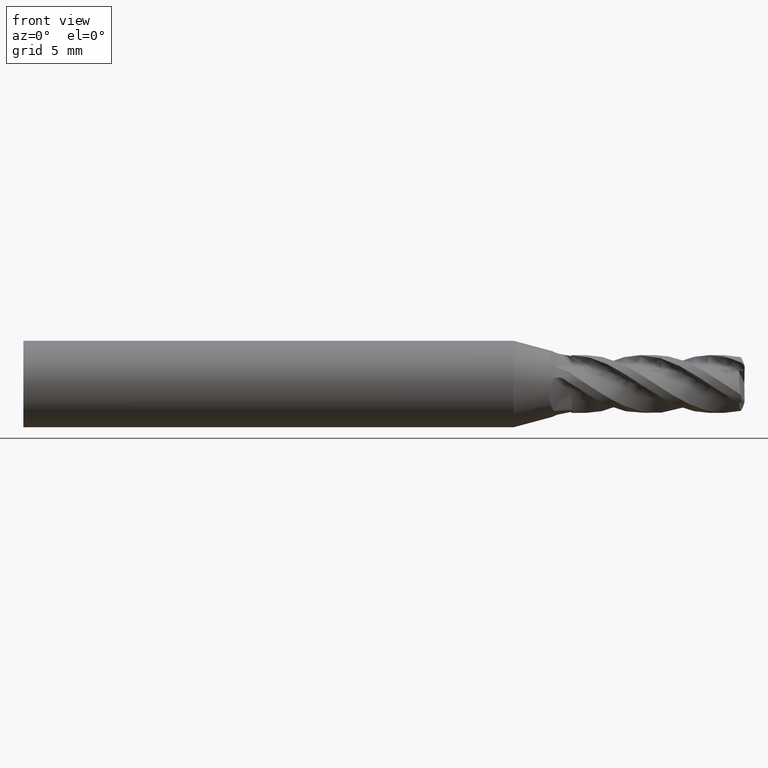
[diagram: clean part render]
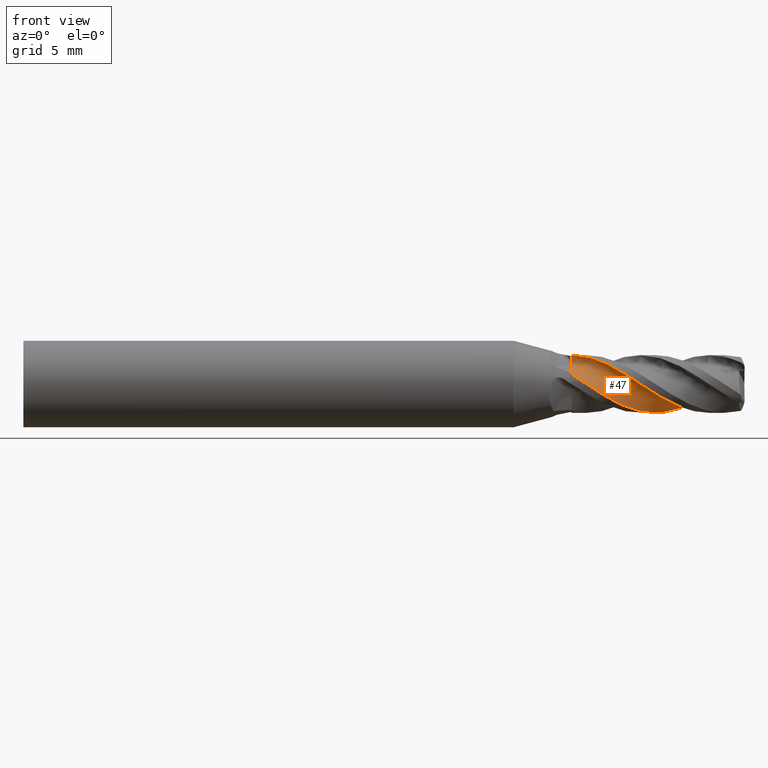
[diagram: same view with one face highlighted and labeled with its STEP entity id]
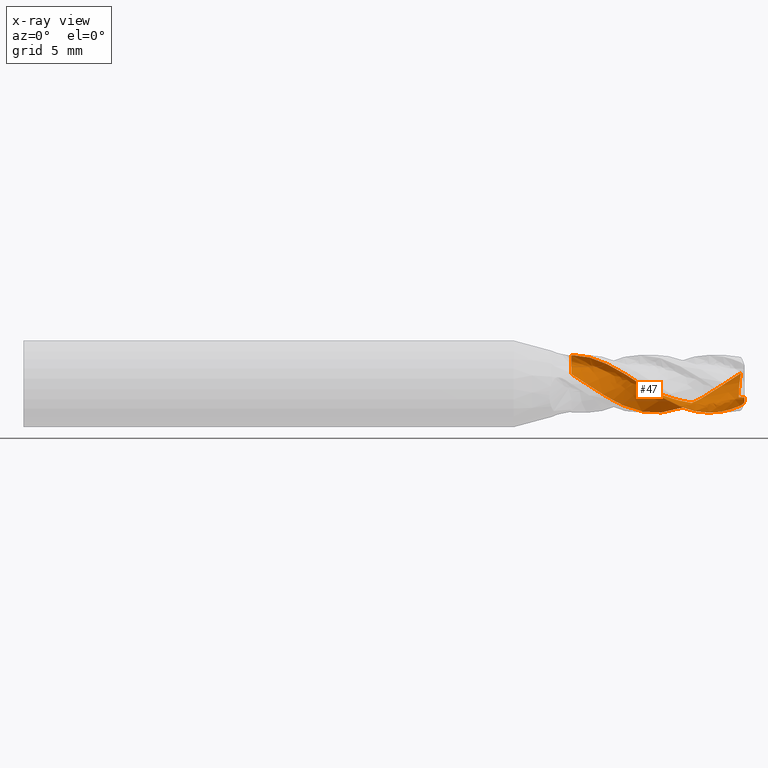
[diagram: x-ray of the same camera — body ghosted, the highlighted face saturated]
A machine part, front view. The second image highlights one B-rep face of the part: STEP entity #47.
The next image is the same camera in x-ray: the body ghosted, the highlighted face saturated — about 0% of this face is hidden behind the body in this view.
In plain terms, the highlighted face is a freeform B-spline surface patch.
Its self-contained STEP definition (entity closure, byte-faithful):
#47 = ADVANCED_FACE ( 'NONE', ( #7163 ), #5067, .F. ) ;
#100 = EDGE_CURVE ( 'NONE', #7056, #6993, #5093, .T. ) ;
#128 = EDGE_CURVE ( 'NONE', #6993, #7008, #5080, .T. ) ;
#131 = EDGE_CURVE ( 'NONE', #7073, #7064, #5079, .T. ) ;
#138 = EDGE_CURVE ( 'NONE', #7008, #7000, #7205, .T. ) ;
#151 = EDGE_CURVE ( 'NONE', #7013, #7011, #5073, .T. ) ;
#179 = EDGE_CURVE ( 'NONE', #7011, #7071, #7101, .T. ) ;
#212 = EDGE_CURVE ( 'NONE', #7064, #7078, #7084, .T. ) ;
#235 = EDGE_CURVE ( 'NONE', #7058, #7056, #7100, .T. ) ;
#283 = EDGE_CURVE ( 'NONE', #7071, #7073, #1801, .T. ) ;
#343 = EDGE_CURVE ( 'NONE', #7000, #7013, #1797, .T. ) ;
#346 = EDGE_CURVE ( 'NONE', #7078, #7058, #1796, .T. ) ;
#1796 = B_SPLINE_CURVE_WITH_KNOTS ( 'NONE', 3,
 ( #4892, #4918, #4919, #4920 ),
 .UNSPECIFIED., .F., .F.,
 ( 4, 4 ),
 ( 0.0005547796380594269400, 0.0006088796184067291400 ),
 .UNSPECIFIED. ) ;
#1797 = B_SPLINE_CURVE_WITH_KNOTS ( 'NONE', 3,
 ( #4884, #4893, #4894, #4895, #4896, #4897, #4898, #4899, #4900, #4901, #4902, #4903, #4904, #4905, #4906, #4907, #4908, #4909, #4910, #4911, #4912, #4913 ),
 .UNSPECIFIED., .F., .F.,
 ( 4, 2, 2, 2, 2, 2, 2, 2, 2, 2, 4 ),
 ( 0.0000000000000000000, 0.001422891868962472900, 0.002845783737924945700, 0.004268675606887415700, 0.005691567475849886200, 0.007114459344812360100, 0.007825905279293594500, 0.008537351213774829800, 0.009248797148256065000, 0.009960243082737300200, 0.01138313495169976500 ),
 .UNSPECIFIED. ) ;
#1801 = B_SPLINE_CURVE_WITH_KNOTS ( 'NONE', 3,
 ( #3085, #3090, #3091, #3092, #3093, #3094 ),
 .UNSPECIFIED., .F., .F.,
 ( 4, 2, 4 ),
 ( 0.0000000000000000000, 0.0001445635260095900000, 0.0002891270520191800000 ),
 .UNSPECIFIED. ) ;
#2446 = CARTESIAN_POINT ( 'NONE',  ( 2.000000000000000000, -1.068549896906284800E-014, 1.630000000000005900 ) ) ;
#2463 = CARTESIAN_POINT ( 'NONE',  ( 1.999999999999998200, -1.170938346284344800E-014, 1.738012294171767300 ) ) ;
#2464 = CARTESIAN_POINT ( 'NONE',  ( 1.999999999999998200, -1.257674520083185100E-014, 1.846024588343528200 ) ) ;
#2465 = CARTESIAN_POINT ( 'NONE',  ( 2.000000000000000000, -1.283413394755924800E-014, 1.953532272200879400 ) ) ;
#2466 = CARTESIAN_POINT ( 'NONE',  ( 13.99761933993744600, 1.085287725040986700, -0.9268549148809737100 ) ) ;
#2470 = CARTESIAN_POINT ( 'NONE',  ( 13.86641098407641300, 1.034475130077136900, -0.9125337641877616600 ) ) ;
#2471 = CARTESIAN_POINT ( 'NONE',  ( 13.72759808305324800, 0.9993112375547827900, -0.9132151357626661100 ) ) ;
#2472 = CARTESIAN_POINT ( 'NONE',  ( 13.59031554737842000, 0.9687013703488996900, -0.9174366512928946400 ) ) ;
#2482 = CARTESIAN_POINT ( 'NONE',  ( 1.999999999999998700, -1.395053969499972400E-014, 2.000000000000011500 ) ) ;
#2489 = DIRECTION ( 'NONE',  ( -2.344220913482135300E-015, -8.571649791457196100E-015, 1.000000000000000000 ) ) ;
#2570 = CARTESIAN_POINT ( 'NONE',  ( 11.53401989952380500, -7.115076756936120400E-017, -2.000000000000011100 ) ) ;
#2574 = CARTESIAN_POINT ( 'NONE',  ( 11.89317515702892400, 0.2366632150274844700, -2.000000000000008000 ) ) ;
#2575 = CARTESIAN_POINT ( 'NONE',  ( 12.25768823653953800, 0.4767123601655882100, -1.956815087930859500 ) ) ;
#2576 = CARTESIAN_POINT ( 'NONE',  ( 12.97808209811352500, 0.9216379035159034700, -1.790799692174228000 ) ) ;
#2577 = CARTESIAN_POINT ( 'NONE',  ( 13.33649518981908600, 1.128214567030021000, -1.668688226191311000 ) ) ;
#2578 = CARTESIAN_POINT ( 'NONE',  ( 13.69999999999999600, 1.309304436548252700, -1.511860407721319100 ) ) ;
#2685 = CARTESIAN_POINT ( 'NONE',  ( 13.69999999999999600, 1.309304436548252700, -1.511860407721319100 ) ) ;
#2689 = CARTESIAN_POINT ( 'NONE',  ( 13.77253979107603300, 1.345442118727209000, -1.480564378430632200 ) ) ;
#2690 = CARTESIAN_POINT ( 'NONE',  ( 13.84405686282516100, 1.362877363867533600, -1.429034360143930600 ) ) ;
#2691 = CARTESIAN_POINT ( 'NONE',  ( 13.95920112633545300, 1.341320719301881900, -1.303324790105798900 ) ) ;
#2692 = CARTESIAN_POINT ( 'NONE',  ( 14.00000000000057900, 1.297958158866142600, -1.228766820051035100 ) ) ;
#2693 = CARTESIAN_POINT ( 'NONE',  ( 14.00000000000000000, 1.234643642705029100, -1.168612457373316500 ) ) ;
#2784 = CARTESIAN_POINT ( 'NONE',  ( 13.59031554737842000, 0.9687013703488996900, -0.9174366512928946400 ) ) ;
#2788 = CARTESIAN_POINT ( 'NONE',  ( 13.60146189423734100, 0.9923058039770346100, -0.8409819254638082300 ) ) ;
#2789 = CARTESIAN_POINT ( 'NONE',  ( 13.60857889970267500, 1.031166808534933000, -0.7670463992704006400 ) ) ;
#2790 = CARTESIAN_POINT ( 'NONE',  ( 13.60805535701710100, 1.143161852898551000, -0.6512136925213627400 ) ) ;
#2791 = CARTESIAN_POINT ( 'NONE',  ( 13.60873654272306200, 1.196950388976524100, -0.5912703203561005000 ) ) ;
#2792 = CARTESIAN_POINT ( 'NONE',  ( 13.61367503054783700, 1.350456353858430700, -0.4063553090011958200 ) ) ;
#2793 = CARTESIAN_POINT ( 'NONE',  ( 13.62077790746032100, 1.442041967757212300, -0.2768143351325234000 ) ) ;
#2794 = CARTESIAN_POINT ( 'NONE',  ( 13.65417321835588800, 1.682695529574271800, 0.1316783040653307100 ) ) ;
#2795 = CARTESIAN_POINT ( 'NONE',  ( 13.69375207093213800, 1.796742164035508800, 0.4350769352493598100 ) ) ;
#2796 = CARTESIAN_POINT ( 'NONE',  ( 13.74785509637996300, 1.852356291947160600, 0.7439254967567625600 ) ) ;
#2892 = CARTESIAN_POINT ( 'NONE',  ( 13.70000000000000100, 1.865676517461873900, 0.7205908216119549800 ) ) ;
#2898 = CARTESIAN_POINT ( 'NONE',  ( 13.45502496568165200, 1.924596256421730000, 0.5680421489179466900 ) ) ;
#2899 = CARTESIAN_POINT ( 'NONE',  ( 13.21267466882169100, 1.964021373286281000, 0.4097312329461251800 ) ) ;
#2900 = CARTESIAN_POINT ( 'NONE',  ( 12.72490130669051900, 2.004082890044984700, 0.09440025320844378000 ) ) ;
#2901 = CARTESIAN_POINT ( 'NONE',  ( 12.48196874992363400, 2.005502124095438700, -0.06638029492440114500 ) ) ;
#2902 = CARTESIAN_POINT ( 'NONE',  ( 11.99481964501895500, 1.968434589706349100, -0.3895001660502396300 ) ) ;
#2903 = CARTESIAN_POINT ( 'NONE',  ( 11.74928629703289200, 1.929790315343644900, -0.5493473062755190900 ) ) ;
#2904 = CARTESIAN_POINT ( 'NONE',  ( 11.26359653829786500, 1.817190589837790000, -0.8507005844075117300 ) ) ;
#2905 = CARTESIAN_POINT ( 'NONE',  ( 11.02162660688570000, 1.743091247443135000, -0.9932686907193873900 ) ) ;
#2906 = CARTESIAN_POINT ( 'NONE',  ( 10.65529195906088200, 1.609944252130013800, -1.189250584297789600 ) ) ;
#2907 = CARTESIAN_POINT ( 'NONE',  ( 10.53224940280842700, 1.562339758517320900, -1.251193278366099500 ) ) ;
#2908 = CARTESIAN_POINT ( 'NONE',  ( 10.28732191523709700, 1.457497128154350100, -1.371893677474421300 ) ) ;
#2909 = CARTESIAN_POINT ( 'NONE',  ( 10.16466010977723400, 1.400227232700024500, -1.430394104031446100 ) ) ;
#2910 = CARTESIAN_POINT ( 'NONE',  ( 9.798559893217873900, 1.218385815956061400, -1.594424782687380100 ) ) ;
#2911 = CARTESIAN_POINT ( 'NONE',  ( 9.556238141410627700, 1.085808099242136600, -1.686942472832678100 ) ) ;
#2912 = CARTESIAN_POINT ( 'NONE',  ( 9.068167588345344800, 0.8086698608222118200, -1.835975814444308600 ) ) ;
#2913 = CARTESIAN_POINT ( 'NONE',  ( 8.828025681072935200, 0.6563172415114202400, -1.896183931675336800 ) ) ;
#2914 = CARTESIAN_POINT ( 'NONE',  ( 8.341665688979693600, 0.3424493892628560600, -1.977117659635459600 ) ) ;
#2915 = CARTESIAN_POINT ( 'NONE',  ( 8.092093281173491800, 0.1847880614242639100, -1.997947834144804300 ) ) ;
#2916 = CARTESIAN_POINT ( 'NONE',  ( 7.605948194103676000, -0.1373207549054879000, -2.001770512791372500 ) ) ;
#2917 = CARTESIAN_POINT ( 'NONE',  ( 7.366331404161790000, -0.3006297646878440300, -1.983633443014098300 ) ) ;
#2918 = CARTESIAN_POINT ( 'NONE',  ( 7.001178318500478800, -0.5324068408015072400, -1.929465710704094200 ) ) ;
#2919 = CARTESIAN_POINT ( 'NONE',  ( 6.878269775575157400, -0.6071582916417452800, -1.907294382230974000 ) ) ;
#2920 = CARTESIAN_POINT ( 'NONE',  ( 6.634158247988000100, -0.7577091044599446600, -1.852644046927974800 ) ) ;
#2921 = CARTESIAN_POINT ( 'NONE',  ( 6.512192695262510400, -0.8326379381236545000, -1.820278056819966800 ) ) ;
#2922 = CARTESIAN_POINT ( 'NONE',  ( 6.267510671153178100, -0.9785804883864688300, -1.746161037216322800 ) ) ;
#2923 = CARTESIAN_POINT ( 'NONE',  ( 6.145900025839330800, -1.048901346014070100, -1.704771143228345000 ) ) ;
#2924 = CARTESIAN_POINT ( 'NONE',  ( 5.902270577367182200, -1.182103408457989800, -1.615261655635461300 ) ) ;
#2925 = CARTESIAN_POINT ( 'NONE',  ( 5.779572865907950600, -1.244220499642460400, -1.567857464740490400 ) ) ;
#2926 = CARTESIAN_POINT ( 'NONE',  ( 5.414219901236345200, -1.424194273648555300, -1.413052510276439700 ) ) ;
#2927 = CARTESIAN_POINT ( 'NONE',  ( 5.174626022778320500, -1.535261987003851700, -1.291928025602073800 ) ) ;
#2928 = CARTESIAN_POINT ( 'NONE',  ( 4.688834503406266000, -1.722744389152206500, -1.028717240897455400 ) ) ;
#2929 = CARTESIAN_POINT ( 'NONE',  ( 4.438955218846627000, -1.798637655755985300, -0.8893242833924682700 ) ) ;
#2930 = CARTESIAN_POINT ( 'NONE',  ( 3.951946742438367200, -1.917870619180574800, -0.5897180562089242600 ) ) ;
#2931 = CARTESIAN_POINT ( 'NONE',  ( 3.711785730579024700, -1.959302267379132300, -0.4313942334659303700 ) ) ;
#2932 = CARTESIAN_POINT ( 'NONE',  ( 3.346374000038900400, -1.991877834741975700, -0.1966323507712403900 ) ) ;
#2933 = CARTESIAN_POINT ( 'NONE',  ( 3.224101102231099700, -1.998125912879785000, -0.1182761507149359700 ) ) ;
#2934 = CARTESIAN_POINT ( 'NONE',  ( 2.981311981305452300, -2.001163750561278500, 0.04289586214464995200 ) ) ;
#2935 = CARTESIAN_POINT ( 'NONE',  ( 2.860176314297989900, -1.997790350747761700, 0.1247729588190433100 ) ) ;
#2936 = CARTESIAN_POINT ( 'NONE',  ( 2.616402827677954100, -1.980852305723040900, 0.2880255539097856300 ) ) ;
#2937 = CARTESIAN_POINT ( 'NONE',  ( 2.494014881692280900, -1.967278904866678300, 0.3691913263546488000 ) ) ;
#2938 = CARTESIAN_POINT ( 'NONE',  ( 2.248038499082672700, -1.931216162990824000, 0.5262059072187820200 ) ) ;
#2939 = CARTESIAN_POINT ( 'NONE',  ( 2.123540741571626100, -1.909137239355099400, 0.6013490369767161600 ) ) ;
#2940 = CARTESIAN_POINT ( 'NONE',  ( 2.000000000000001800, -1.882011806484841000, 0.6767802894970527100 ) ) ;
#3085 = CARTESIAN_POINT ( 'NONE',  ( 14.00000000000000000, 1.234643642705029100, -1.168612457373316500 ) ) ;
#3090 = CARTESIAN_POINT ( 'NONE',  ( 13.99957814344277600, 1.199436005841542300, -1.135488499488992900 ) ) ;
#3091 = CARTESIAN_POINT ( 'NONE',  ( 13.99915416367727000, 1.162313259032579500, -1.104099195898215800 ) ) ;
#3092 = CARTESIAN_POINT ( 'NONE',  ( 13.99832810418652500, 1.110031870327480500, -1.021426131012911400 ) ) ;
#3093 = CARTESIAN_POINT ( 'NONE',  ( 13.99794876990034700, 1.093737747264296000, -0.9750876005549007400 ) ) ;
#3094 = CARTESIAN_POINT ( 'NONE',  ( 13.99761933993744600, 1.085287725040986700, -0.9268549148809737100 ) ) ;
#4884 = CARTESIAN_POINT ( 'NONE',  ( 1.999999999999998700, -1.350652283237326300E-014, 2.000000000000011500 ) ) ;
#4892 = CARTESIAN_POINT ( 'NONE',  ( 13.74785509637996300, 1.852356291947160600, 0.7439254967567625600 ) ) ;
#4893 = CARTESIAN_POINT ( 'NONE',  ( 2.400701694031820200, -0.2640738685338220900, 2.000000000000011100 ) ) ;
#4894 = CARTESIAN_POINT ( 'NONE',  ( 2.794806655079070900, -0.5237288667998333300, 1.947837485209903200 ) ) ;
#4895 = CARTESIAN_POINT ( 'NONE',  ( 3.588454341437808300, -1.006857121692584300, 1.747741837688049600 ) ) ;
#4896 = CARTESIAN_POINT ( 'NONE',  ( 3.989992513837208300, -1.230968335242071700, 1.597692412765154800 ) ) ;
#4897 = CARTESIAN_POINT ( 'NONE',  ( 4.780876449408847200, -1.599255675497132100, 1.228936683709209500 ) ) ;
#4898 = CARTESIAN_POINT ( 'NONE',  ( 5.174520375820096200, -1.746702182121427500, 1.009316885130621600 ) ) ;
#4899 = CARTESIAN_POINT ( 'NONE',  ( 5.975791814452882100, -1.948765188535908300, 0.5215393825859598900 ) ) ;
#4900 = CARTESIAN_POINT ( 'NONE',  ( 6.369195494339947100, -1.999798288277517800, 0.2621375522456029200 ) ) ;
#4901 = CARTESIAN_POINT ( 'NONE',  ( 7.160139980180695800, -2.000200520495348600, -0.2590505122657386600 ) ) ;
#4902 = CARTESIAN_POINT ( 'NONE',  ( 7.560827236412156300, -1.948216564089562800, -0.5231587351957481800 ) ) ;
#4903 = CARTESIAN_POINT ( 'NONE',  ( 8.159837127190392900, -1.796998605661646300, -0.8877537507390661500 ) ) ;
#4904 = CARTESIAN_POINT ( 'NONE',  ( 8.360515538147497600, -1.734210329872426700, -1.004872718270696700 ) ) ;
#4905 = CARTESIAN_POINT ( 'NONE',  ( 8.759107798632678400, -1.587882927466743400, -1.223062736257063400 ) ) ;
#4906 = CARTESIAN_POINT ( 'NONE',  ( 8.956983658510955200, -1.504510479518129400, -1.324162086834034700 ) ) ;
#4907 = CARTESIAN_POINT ( 'NONE',  ( 9.352221126502009000, -1.320105016332047400, -1.508071537110724500 ) ) ;
#4908 = CARTESIAN_POINT ( 'NONE',  ( 9.549561083518483400, -1.219049182654381000, -1.590906155557408000 ) ) ;
#4909 = CARTESIAN_POINT ( 'NONE',  ( 9.945936551181564100, -1.001760949108620800, -1.735954580731235300 ) ) ;
#4910 = CARTESIAN_POINT ( 'NONE',  ( 10.14597989696851400, -0.8849193484367219300, -1.798397499056718200 ) ) ;
#4911 = CARTESIAN_POINT ( 'NONE',  ( 10.74507481545583900, -0.5200310462953153800, -1.949058999182264900 ) ) ;
#4912 = CARTESIAN_POINT ( 'NONE',  ( 11.13811225695546400, -0.2608809799835447000, -2.000000000000012400 ) ) ;
#4913 = CARTESIAN_POINT ( 'NONE',  ( 11.53401989952380500, -7.115076756936120400E-017, -2.000000000000011100 ) ) ;
#4918 = CARTESIAN_POINT ( 'NONE',  ( 13.73130579874517600, 1.857565508729637900, 0.7381301231797613400 ) ) ;
#4919 = CARTESIAN_POINT ( 'NONE',  ( 13.71528603516918600, 1.862000023633001000, 0.7301096053619001700 ) ) ;
#4920 = CARTESIAN_POINT ( 'NONE',  ( 13.70000000000000100, 1.865676517461873900, 0.7205908216119549800 ) ) ;
#4955 = CARTESIAN_POINT ( 'NONE',  ( 2.000000000000000000, -1.068549896906284800E-014, 1.630000000000005900 ) ) ;
#4962 = CARTESIAN_POINT ( 'NONE',  ( 1.999999999999998700, -1.350652283237326300E-014, 2.000000000000011500 ) ) ;
#4970 = CARTESIAN_POINT ( 'NONE',  ( 2.000000000000000000, -1.283413394755924800E-014, 1.953532272200879400 ) ) ;
#4973 = CARTESIAN_POINT ( 'NONE',  ( 13.69999999999999600, 1.309304436548252700, -1.511860407721319100 ) ) ;
#4975 = CARTESIAN_POINT ( 'NONE',  ( 11.53401989952380500, -7.115076756936120400E-017, -2.000000000000011100 ) ) ;
#5012 = CARTESIAN_POINT ( 'NONE',  ( 2.000000000000001800, -1.882011806484841000, 0.6767802894970527100 ) ) ;
#5014 = CARTESIAN_POINT ( 'NONE',  ( 13.70000000000000100, 1.865676517461873900, 0.7205908216119549800 ) ) ;
#5020 = CARTESIAN_POINT ( 'NONE',  ( 13.59031554737842000, 0.9687013703488996900, -0.9174366512928946400 ) ) ;
#5027 = CARTESIAN_POINT ( 'NONE',  ( 14.00000000000000000, 1.234643642705029100, -1.168612457373316500 ) ) ;
#5029 = CARTESIAN_POINT ( 'NONE',  ( 13.99761933993744600, 1.085287725040986700, -0.9268549148809737100 ) ) ;
#5032 = CARTESIAN_POINT ( 'NONE',  ( 13.74785509637996300, 1.852356291947160600, 0.7439254967567625600 ) ) ;
#5067 = B_SPLINE_SURFACE_WITH_KNOTS ( 'NONE', 3, 3, ( 
 ( #7685, #7675, #7645, #7688, #7690, #7691, #7693, #7694, #7695, #7697, #7698, #7699, #7700, #7702, #7704, #7706, #7708, #7709, #7711, #7712, #7714, #7716, #7717, #7718, #7719, #7721, #7722, #7723, #7724, #7725, #7726, #7727, #7728, #7729, #7730, #7731, #7732, #7733, #7734, #7735 ),
 ( #7736, #7737, #7738, #7739, #7740, #7741, #7742, #7743, #7744, #7745, #7746, #7748, #7749, #7750, #7751, #7752, #7754, #7755, #7756, #7757, #7759, #7760, #7762, #7764, #7766, #7767, #7769, #7771, #7773, #7775, #7777, #7778, #7780, #7781, #7783, #7785, #7786, #7787, #7789, #7790 ),
 ( #7792, #7793, #7794, #7795, #7796, #7797, #7798, #7799, #7801, #7802, #7803, #7804, #7805, #7806, #7807, #7808, #7809, #7810, #7812, #7813, #7815, #7816, #7818, #7820, #7822, #7823, #7825, #7826, #7828, #7830, #7832, #7833, #7835, #7836, #7838, #7839, #7841, #7842, #7843, #7844 ),
 ( #7845, #7846, #7848, #7849, #7851, #7852, #7854, #7855, #7856, #7858, #7860, #7861, #7862, #7863, #7864, #7865, #7866, #7867, #7868, #7869, #7871, #7873, #7875, #7876, #7878, #7879, #7880, #7881, #7883, #7884, #7885, #7887, #7889, #7890, #7892, #7893, #7895, #7897, #7898, #7900 ),
 ( #7902, #7903, #7905, #7906, #7908, #7909, #7910, #7911, #7912, #7913, #7914, #7915, #7916, #7917, #7918, #7920, #7921, #7922, #7923, #7924, #7925, #7926, #7927, #7928, #7929, #7930, #7931, #7932, #7933, #7934, #7935, #7936, #7937, #7938, #7939, #7940, #7941, #7942, #7943, #7945 ),
 ( #7947, #7949, #7950, #7951, #7952, #7953, #7954, #7955, #7956, #7957, #7958, #7959, #7960, #7962, #7963, #7964, #7966, #7968, #7969, #7971, #7973, #7974, #7976, #7978, #7980, #7981, #7982, #7983, #7985, #7986, #7988, #7990, #7992, #7993, #7995, #7997, #7998, #7999, #8001, #8003 ),
 ( #8004, #8006, #8008, #8010, #8011, #8012, #8013, #8014, #8016, #8018, #8019, #8020, #8021, #8023, #8024, #8026, #8028, #8029, #8031, #8033, #8035, #8037, #8039, #8040, #8042, #8043, #8045, #8046, #8048, #8049, #8051, #8053, #8054, #8055, #8056, #8057, #8058, #8059, #8060, #8061 ),
 ( #8062, #8063, #8065, #8066, #8068, #8069, #8071, #8072, #8074, #8075, #8077, #8079, #8081, #8082, #8084, #8086, #8088, #8089, #8090, #8091, #8092, #8093, #8094, #8095, #8096, #8097, #8099, #8100, #8101, #8102, #8104, #8105, #8106, #8107, #8108, #8110, #8111, #8112, #8114, #8115 ),
 ( #8116, #8117, #8118, #8119, #8120, #8121, #8123, #8124, #8126, #8127, #8128, #8129, #8130, #8131, #8133, #8134, #8136, #8137, #8138, #8139, #8141, #8142, #8143, #8145, #8146, #8148, #8150, #8151, #8153, #8155, #8157, #8158, #8159, #8160, #8161, #8162, #8164, #8165, #8167, #8168 ),
 ( #8170, #8171, #8172, #8174, #8175, #8176, #8178, #8180, #8181, #8182, #8183, #8184, #8186, #8187, #8189, #8191, #8193, #8194, #8195, #8197, #8199, #8201, #8202, #8203, #8205, #8206, #8207, #8209, #8210, #8211, #8212, #8213, #8214, #8216, #8218, #8219, #8220, #8222, #8224, #8226 ),
 ( #8228, #8229, #8231, #8233, #8235, #8236, #8237, #8238, #8239, #8241, #8243, #8245, #8247, #8248, #8249, #8250, #8252, #8254, #8256, #8257, #8259, #8260, #8261, #8263, #8265, #8266, #8268, #8270, #8271, #8273, #8275, #8276, #8277, #8278, #8279, #8281, #8283, #8284, #8285, #8286 ),
 ( #8288, #8289, #8291, #8293, #8294, #8295, #8297, #8298, #8300, #8301, #8302, #8303, #8305, #8306, #8307, #8308, #8309, #8310, #8311, #8313, #8315, #8316, #8317, #8319, #8321, #8322, #8323, #8325, #8326, #8327, #8329, #8331, #8333, #8335, #8336, #8338, #8339, #8341, #8342, #8344 ) ),
 .UNSPECIFIED., .F., .F., .F.,
 ( 4, 2, 2, 2, 2, 4 ),
 ( 4, 2, 2, 2, 2, 2, 2, 2, 2, 2, 2, 2, 2, 2, 2, 2, 2, 2, 2, 4 ),
 ( 0.0000000000000000000, 0.4999999999999980000, 0.6259407578674396300, 0.7544896674088813500, 0.8363264449392546800, 1.000000000000000000 ),
 ( 0.0000000000000000000, 0.04997467127568103200, 0.09998637292206515000, 0.1500083548865104300, 0.2000041774432554400, 0.2500000000000004400, 0.3000078072025935100, 0.3500078405516286500, 0.4000078739006637800, 0.4750078529281620600, 0.5125078424419111700, 0.5500078319556602800, 0.6000078559143881000, 0.6500078798731159200, 0.7000039399365582900, 0.7500000000000005600, 0.8000077393251035000, 0.9000136270779349700, 0.9500253287243191100, 1.000000000000000000 ),
 .UNSPECIFIED. ) ;
#5073 = B_SPLINE_CURVE_WITH_KNOTS ( 'NONE', 3,
 ( #2570, #2574, #2575, #2576, #2577, #2578 ),
 .UNSPECIFIED., .F., .F.,
 ( 4, 2, 4 ),
 ( 0.01138313495169976500, 0.01267393876716508400, 0.01396474258263040400 ),
 .UNSPECIFIED. ) ;
#5079 = B_SPLINE_CURVE_WITH_KNOTS ( 'NONE', 3,
 ( #2466, #2470, #2471, #2472 ),
 .UNSPECIFIED., .F., .F.,
 ( 4, 4 ),
 ( 0.0007026178730873633600, 0.001111401762182521000 ),
 .UNSPECIFIED. ) ;
#5080 = B_SPLINE_CURVE_WITH_KNOTS ( 'NONE', 3,
 ( #2446, #2463, #2464, #2465 ),
 .UNSPECIFIED., .F., .F.,
 ( 4, 4 ),
 ( 0.0000000000000000000, 1.000000000000000000 ),
 .UNSPECIFIED. ) ;
#5093 = B_SPLINE_CURVE_WITH_KNOTS ( 'NONE', 3,
 ( #6678, #6690, #6691, #6692, #6693, #6694, #6695, #6696, #6697, #6698, #6699, #6700, #6701, #6702 ),
 .UNSPECIFIED., .F., .F.,
 ( 4, 2, 2, 2, 2, 2, 4 ),
 ( 0.0001722228637857543500, 0.001262236489837692200, 0.001534739896350676400, 0.001670991599607168700, 0.001807243302863660800, 0.002079746709376645500, 0.002352250115889629700 ),
 .UNSPECIFIED. ) ;
#6678 = CARTESIAN_POINT ( 'NONE',  ( 2.000000000000001800, -1.882011806484841000, 0.6767802894970527100 ) ) ;
#6690 = CARTESIAN_POINT ( 'NONE',  ( 1.999999999999999600, -1.578483106160425900, 0.8809794886728106200 ) ) ;
#6691 = CARTESIAN_POINT ( 'NONE',  ( 1.999999999999999100, -1.247917274806490800, 1.037671906028672800 ) ) ;
#6692 = CARTESIAN_POINT ( 'NONE',  ( 1.999999999999999100, -0.8049078617157100500, 1.162177131264001700 ) ) ;
#6693 = CARTESIAN_POINT ( 'NONE',  ( 1.999999999999999600, -0.7153885249762013100, 1.183335551830703600 ) ) ;
#6694 = CARTESIAN_POINT ( 'NONE',  ( 1.999999999999999100, -0.5797237723819943500, 1.209420221578889200 ) ) ;
#6695 = CARTESIAN_POINT ( 'NONE',  ( 1.999999999999999600, -0.5342704813079692800, 1.217171542304154500 ) ) ;
#6696 = CARTESIAN_POINT ( 'NONE',  ( 1.999999999999999600, -0.4430213123443524900, 1.230759391699892500 ) ) ;
#6697 = CARTESIAN_POINT ( 'NONE',  ( 1.999999999999987100, -0.3966680373740110700, 1.233822006168636200 ) ) ;
#6698 = CARTESIAN_POINT ( 'NONE',  ( 1.999999999999986200, -0.2617026087600843300, 1.263975490029738400 ) ) ;
#6699 = CARTESIAN_POINT ( 'NONE',  ( 1.999999999999999600, -0.1765861160012721900, 1.313415924032260000 ) ) ;
#6700 = CARTESIAN_POINT ( 'NONE',  ( 2.000000000000000900, -0.04714653899074958800, 1.447330088216855800 ) ) ;
#6701 = CARTESIAN_POINT ( 'NONE',  ( 2.000000000000001800, -9.745396402476478900E-015, 1.536750615729876500 ) ) ;
#6702 = CARTESIAN_POINT ( 'NONE',  ( 2.000000000000000000, -1.068549896906284800E-014, 1.630000000000005900 ) ) ;
#6822 = ORIENTED_EDGE ( 'NONE', *, *, #346, .F. ) ;
#6831 = ORIENTED_EDGE ( 'NONE', *, *, #151, .F. ) ;
#6993 = VERTEX_POINT ( 'NONE', #4955 ) ;
#7000 = VERTEX_POINT ( 'NONE', #4962 ) ;
#7008 = VERTEX_POINT ( 'NONE', #4970 ) ;
#7011 = VERTEX_POINT ( 'NONE', #4973 ) ;
#7013 = VERTEX_POINT ( 'NONE', #4975 ) ;
#7056 = VERTEX_POINT ( 'NONE', #5012 ) ;
#7058 = VERTEX_POINT ( 'NONE', #5014 ) ;
#7064 = VERTEX_POINT ( 'NONE', #5020 ) ;
#7071 = VERTEX_POINT ( 'NONE', #5027 ) ;
#7073 = VERTEX_POINT ( 'NONE', #5029 ) ;
#7078 = VERTEX_POINT ( 'NONE', #5032 ) ;
#7084 = B_SPLINE_CURVE_WITH_KNOTS ( 'NONE', 3,
 ( #2784, #2788, #2789, #2790, #2791, #2792, #2793, #2794, #2795, #2796 ),
 .UNSPECIFIED., .F., .F.,
 ( 4, 2, 2, 2, 4 ),
 ( 0.0008064220048827443800, 0.001046193591655801100, 0.001285965178428857700, 0.001765508351974971600, 0.002724594699067198100 ),
 .UNSPECIFIED. ) ;
#7100 = B_SPLINE_CURVE_WITH_KNOTS ( 'NONE', 3,
 ( #2892, #2898, #2899, #2900, #2901, #2902, #2903, #2904, #2905, #2906, #2907, #2908, #2909, #2910, #2911, #2912, #2913, #2914, #2915, #2916, #2917, #2918, #2919, #2920, #2921, #2922, #2923, #2924, #2925, #2926, #2927, #2928, #2929, #2930, #2931, #2932, #2933, #2934, #2935, #2936, #2937, #2938, #2939, #2940 ),
 .UNSPECIFIED., .F., .F.,
 ( 4, 2, 2, 2, 2, 2, 2, 2, 2, 2, 2, 2, 2, 2, 2, 2, 2, 2, 2, 2, 2, 4 ),
 ( 4.097079365809535700E-018, 0.0008731168233561890600, 0.001746233646712374000, 0.002619350470068558600, 0.003492467293424743700, 0.003929025705102836400, 0.004365584116780929200, 0.005238700940137113800, 0.006111817763493298400, 0.006984934586849483900, 0.007858051410205667600, 0.008294609821883760400, 0.008731168233561853100, 0.009167726645239944100, 0.009604285056918036900, 0.01047740188027422600, 0.01135051870363041500, 0.01222363552698660200, 0.01266019393866469600, 0.01309675235034279100, 0.01353331076202088400, 0.01396986917369897800 ),
 .UNSPECIFIED. ) ;
#7101 = B_SPLINE_CURVE_WITH_KNOTS ( 'NONE', 3,
 ( #2685, #2689, #2690, #2691, #2692, #2693 ),
 .UNSPECIFIED., .F., .F.,
 ( 4, 2, 4 ),
 ( 0.0000000000000000000, 0.0002557780858417569000, 0.0005115561716835137900 ),
 .UNSPECIFIED. ) ;
#7163 = FACE_OUTER_BOUND ( 'NONE', #7488, .T. ) ;
#7199 = VECTOR ( 'NONE', #2489, 1000.000000000000000 ) ;
#7205 = LINE ( 'NONE', #2482, #7199 ) ;
#7347 = ORIENTED_EDGE ( 'NONE', *, *, #131, .F. ) ;
#7348 = ORIENTED_EDGE ( 'NONE', *, *, #100, .F. ) ;
#7364 = ORIENTED_EDGE ( 'NONE', *, *, #283, .F. ) ;
#7376 = ORIENTED_EDGE ( 'NONE', *, *, #138, .F. ) ;
#7426 = ORIENTED_EDGE ( 'NONE', *, *, #179, .F. ) ;
#7488 = EDGE_LOOP ( 'NONE', ( #7967, #7348, #7541, #6822, #7494, #7347, #7364, #7426, #6831, #7713, #7376 ) ) ;
#7494 = ORIENTED_EDGE ( 'NONE', *, *, #212, .F. ) ;
#7541 = ORIENTED_EDGE ( 'NONE', *, *, #235, .F. ) ;
#7645 = CARTESIAN_POINT ( 'NONE',  ( 1.040986271808463000, -2.930301032549205600, 0.5174721139828355500 ) ) ;
#7675 = CARTESIAN_POINT ( 'NONE',  ( 0.6389586619401168600, -2.840210655218398500, 0.9161095015515260400 ) ) ;
#7685 = CARTESIAN_POINT ( 'NONE',  ( 0.2391157141655613500, -2.671944335479572400, 1.259999999999973800 ) ) ;
#7688 = CARTESIAN_POINT ( 'NONE',  ( 1.836942474580339800, -2.977870790509586900, -0.2424430591512295500 ) ) ;
#7690 = CARTESIAN_POINT ( 'NONE',  ( 2.240676143445406300, -2.903391716069456200, -0.6514052795620103300 ) ) ;
#7691 = CARTESIAN_POINT ( 'NONE',  ( 3.037268273880342000, -2.649831374224402400, -1.373381442580499300 ) ) ;
#7693 = CARTESIAN_POINT ( 'NONE',  ( 3.440592825786758600, -2.428920082131440100, -1.719196725880808700 ) ) ;
#7694 = CARTESIAN_POINT ( 'NONE',  ( 4.236896793447432000, -1.919507044883116200, -2.287696188617840000 ) ) ;
#7695 = CARTESIAN_POINT ( 'NONE',  ( 4.640737256906136000, -1.578812815443838100, -2.522228415178153800 ) ) ;
#7697 = CARTESIAN_POINT ( 'NONE',  ( 5.437636728001287200, -0.8883549027539532400, -2.850384493896633000 ) ) ;
#7698 = CARTESIAN_POINT ( 'NONE',  ( 5.840660362547602300, -0.4856903063308611300, -2.935803596200184700 ) ) ;
#7699 = CARTESIAN_POINT ( 'NONE',  ( 6.637183440153745700, 0.2773866380215843100, -2.972943878749484600 ) ) ;
#7700 = CARTESIAN_POINT ( 'NONE',  ( 7.040358975550005600, 0.6823991441864425400, -2.896412606512412500 ) ) ;
#7702 = CARTESIAN_POINT ( 'NONE',  ( 7.837342257407254200, 1.401353957843957600, -2.636481823378138900 ) ) ;
#7704 = CARTESIAN_POINT ( 'NONE',  ( 8.241095348744005700, 1.745964858595783000, -2.409641490722310500 ) ) ;
#7706 = CARTESIAN_POINT ( 'NONE',  ( 9.037428394306191500, 2.308801309771618900, -1.893205413957725900 ) ) ;
#7708 = CARTESIAN_POINT ( 'NONE',  ( 9.440712060600517900, 2.539215196424953200, -1.551472024611256100 ) ) ;
#7709 = CARTESIAN_POINT ( 'NONE',  ( 10.43613099699210700, 2.939921962653036800, -0.6847961088506497900 ) ) ;
#7711 = CARTESIAN_POINT ( 'NONE',  ( 11.03795806947744600, 3.017275698584438400, -0.07025419383698396100 ) ) ;
#7712 = CARTESIAN_POINT ( 'NONE',  ( 11.93962419223959200, 2.858718666674352300, 0.8005859479969667000 ) ) ;
#7713 = ORIENTED_EDGE ( 'NONE', *, *, #343, .F. ) ;
#7714 = CARTESIAN_POINT ( 'NONE',  ( 12.23851106002631200, 2.770893773165878000, 1.076297938190239600 ) ) ;
#7716 = CARTESIAN_POINT ( 'NONE',  ( 12.83817505770487700, 2.504848308714870500, 1.598335196612606900 ) ) ;
#7717 = CARTESIAN_POINT ( 'NONE',  ( 13.14003743961393400, 2.325561825039216500, 1.841258845176883200 ) ) ;
#7718 = CARTESIAN_POINT ( 'NONE',  ( 13.83733657756776800, 1.868090530797871900, 2.329209853317800500 ) ) ;
#7719 = CARTESIAN_POINT ( 'NONE',  ( 14.24109490325156600, 1.523476789903840800, 2.556124745864087000 ) ) ;
#7721 = CARTESIAN_POINT ( 'NONE',  ( 15.03742964450883000, 0.8266410736002117700, 2.869045439507483600 ) ) ;
#7722 = CARTESIAN_POINT ( 'NONE',  ( 15.44071401812375500, 0.4216656199248358100, 2.945645949507932600 ) ) ;
#7723 = CARTESIAN_POINT ( 'NONE',  ( 16.23701677292763200, -0.3418797254653685400, 2.966113071267087800 ) ) ;
#7724 = CARTESIAN_POINT ( 'NONE',  ( 16.64073709428484400, -0.7455109690517245400, 2.880853695832061000 ) ) ;
#7725 = CARTESIAN_POINT ( 'NONE',  ( 17.43759055348381900, -1.458529353380262400, 2.605315400989612700 ) ) ;
#7726 = CARTESIAN_POINT ( 'NONE',  ( 17.84066924712055200, -1.797627255026794700, 2.371228205504241100 ) ) ;
#7727 = CARTESIAN_POINT ( 'NONE',  ( 18.63721242344677300, -2.349279912439462300, 1.842723402841417900 ) ) ;
#7728 = CARTESIAN_POINT ( 'NONE',  ( 19.04031032412229900, -2.572266351299075100, 1.496622980028740900 ) ) ;
#7729 = CARTESIAN_POINT ( 'NONE',  ( 20.23582406323279800, -3.030734175887193500, 0.4450472365991041100 ) ) ;
#7730 = CARTESIAN_POINT ( 'NONE',  ( 21.04254535542826300, -3.016331650674978900, -0.4204939729553604500 ) ) ;
#7731 = CARTESIAN_POINT ( 'NONE',  ( 22.23685950032075500, -2.589799346300257100, -1.486188989183270000 ) ) ;
#7732 = CARTESIAN_POINT ( 'NONE',  ( 22.64085754356417700, -2.348429927807836200, -1.823856362199188600 ) ) ;
#7733 = CARTESIAN_POINT ( 'NONE',  ( 23.43709985187574300, -1.817171149953984900, -2.368873243449066900 ) ) ;
#7734 = CARTESIAN_POINT ( 'NONE',  ( 23.83967389340336100, -1.471297240458508100, -2.588426927669172700 ) ) ;
#7735 = CARTESIAN_POINT ( 'NONE',  ( 24.23830558858341500, -1.119320756356254800, -2.738016728283768000 ) ) ;
#7736 = CARTESIAN_POINT ( 'NONE',  ( 0.6537667868939224200, -2.042757855771707200, 1.259999999999979800 ) ) ;
#7737 = CARTESIAN_POINT ( 'NONE',  ( 1.053286971903892000, -2.210877261526296600, 0.9972700863266059600 ) ) ;
#7738 = CARTESIAN_POINT ( 'NONE',  ( 1.455560549087848500, -2.318354435623329200, 0.6845611164761229400 ) ) ;
#7739 = CARTESIAN_POINT ( 'NONE',  ( 2.251546360618709400, -2.427601955032717500, 0.07313078065469824600 ) ) ;
#7740 = CARTESIAN_POINT ( 'NONE',  ( 2.655315082875222600, -2.403035378337152300, -0.2614220233070863600 ) ) ;
#7741 = CARTESIAN_POINT ( 'NONE',  ( 3.451879489242004600, -2.264528123067964100, -0.8693871672061828100 ) ) ;
#7742 = CARTESIAN_POINT ( 'NONE',  ( 3.855191685266803800, -2.117281203684641800, -1.166644612445823600 ) ) ;
#7743 = CARTESIAN_POINT ( 'NONE',  ( 4.651505294476349300, -1.757374733684167900, -1.674400727038716000 ) ) ;
#7744 = CARTESIAN_POINT ( 'NONE',  ( 5.055355657288563600, -1.504170240228962700, -1.892254175893651500 ) ) ;
#7745 = CARTESIAN_POINT ( 'NONE',  ( 5.852246013008418400, -0.9753998864950100800, -2.221997823309072000 ) ) ;
#7746 = CARTESIAN_POINT ( 'NONE',  ( 6.255270825764756500, -0.6594076738163151500, -2.325675763994705200 ) ) ;
#7748 = CARTESIAN_POINT ( 'NONE',  ( 7.051792536408656000, -0.04482379987468698000, -2.426484019572344900 ) ) ;
#7749 = CARTESIAN_POINT ( 'NONE',  ( 7.454972345109580600, 0.2871037477041208400, -2.400242291783389400 ) ) ;
#7750 = CARTESIAN_POINT ( 'NONE',  ( 8.251951321796255500, 0.8934666150346617400, -2.256355585561220500 ) ) ;
#7751 = CARTESIAN_POINT ( 'NONE',  ( 8.655707584002829700, 1.189989001582339300, -2.104152726556668600 ) ) ;
#7752 = CARTESIAN_POINT ( 'NONE',  ( 9.452037669327525600, 1.693688802631569100, -1.738055183160048600 ) ) ;
#7754 = CARTESIAN_POINT ( 'NONE',  ( 9.855324766547038700, 1.908477143200446800, -1.483638551671925300 ) ) ;
#7755 = CARTESIAN_POINT ( 'NONE',  ( 10.85073916877221700, 2.313328550387281800, -0.8188584973804148300 ) ) ;
#7756 = CARTESIAN_POINT ( 'NONE',  ( 11.45262366712557500, 2.430378541869261600, -0.3296564359563634600 ) ) ;
#7757 = CARTESIAN_POINT ( 'NONE',  ( 12.35429159918594900, 2.380677526744064700, 0.3866930846233742600 ) ) ;
#7759 = CARTESIAN_POINT ( 'NONE',  ( 12.65311029217335000, 2.335147054110490000, 0.6181137276380354000 ) ) ;
#7760 = CARTESIAN_POINT ( 'NONE',  ( 13.25285887783014400, 2.167555343342533600, 1.063572369825133600 ) ) ;
#7762 = CARTESIAN_POINT ( 'NONE',  ( 13.55464963819155400, 2.044897049198442800, 1.274857606240075800 ) ) ;
#7764 = CARTESIAN_POINT ( 'NONE',  ( 14.25194564112295700, 1.719615197912115000, 1.712444182995820800 ) ) ;
#7766 = CARTESIAN_POINT ( 'NONE',  ( 14.65570735470107500, 1.462578594071309900, 1.924678857625132400 ) ) ;
#7767 = CARTESIAN_POINT ( 'NONE',  ( 15.45203897322950600, 0.9272156573935024200, 2.242691034783520300 ) ) ;
#7769 = CARTESIAN_POINT ( 'NONE',  ( 15.85532667321965100, 0.6086246098673205900, 2.339446310478143300 ) ) ;
#7771 = CARTESIAN_POINT ( 'NONE',  ( 16.65162563554322300, -0.007871307299788540500, 2.426786984830767000 ) ) ;
#7773 = CARTESIAN_POINT ( 'NONE',  ( 17.05534956845339100, -0.3394769540396215300, 2.393433767564749900 ) ) ;
#7775 = CARTESIAN_POINT ( 'NONE',  ( 17.85220049713731800, -0.9424758006987967700, 2.236353841405778600 ) ) ;
#7777 = CARTESIAN_POINT ( 'NONE',  ( 18.25528193749779500, -1.235168045967813600, 2.077848697946781600 ) ) ;
#7778 = CARTESIAN_POINT ( 'NONE',  ( 19.05181933320449900, -1.730945338244594100, 1.700941503576046000 ) ) ;
#7780 = CARTESIAN_POINT ( 'NONE',  ( 19.45492294071410200, -1.940203010225579000, 1.442349751667426600 ) ) ;
#7781 = CARTESIAN_POINT ( 'NONE',  ( 20.65044020416047100, -2.408906958091465300, 0.6331975166825728500 ) ) ;
#7783 = CARTESIAN_POINT ( 'NONE',  ( 21.45714899292053300, -2.473152406632255700, -0.06399410933263295600 ) ) ;
#7785 = CARTESIAN_POINT ( 'NONE',  ( 22.65149495993262700, -2.226324127443144500, -0.9662543241872496600 ) ) ;
#7786 = CARTESIAN_POINT ( 'NONE',  ( 23.05546581636304600, -2.061858234964165400, -1.257945002552538700 ) ) ;
#7787 = CARTESIAN_POINT ( 'NONE',  ( 23.85167037717871400, -1.682085067811845500, -1.749073087276267900 ) ) ;
#7789 = CARTESIAN_POINT ( 'NONE',  ( 24.25448320224293000, -1.423134069303157800, -1.955942218240642100 ) ) ;
#7790 = CARTESIAN_POINT ( 'NONE',  ( 24.65295583357270500, -1.151994255213903300, -2.109678638427139300 ) ) ;
#7792 = CARTESIAN_POINT ( 'NONE',  ( 1.068417859622283100, -1.413571376063842000, 1.259999999999986200 ) ) ;
#7793 = CARTESIAN_POINT ( 'NONE',  ( 1.467574819401380700, -1.581526857548598600, 1.078337226220514600 ) ) ;
#7794 = CARTESIAN_POINT ( 'NONE',  ( 1.870134826367233900, -1.706407838697245700, 0.8516501189693847000 ) ) ;
#7795 = CARTESIAN_POINT ( 'NONE',  ( 2.666150246657079700, -1.877333119556055900, 0.3887046204606515200 ) ) ;
#7796 = CARTESIAN_POINT ( 'NONE',  ( 3.069954022305038800, -1.902679040605159900, 0.1285612329476559800 ) ) ;
#7797 = CARTESIAN_POINT ( 'NONE',  ( 3.866490704603667200, -1.879224871911215500, -0.3653928918316849400 ) ) ;
#7798 = CARTESIAN_POINT ( 'NONE',  ( 4.269790544746641100, -1.805642325237894600, -0.6140924990109687400 ) ) ;
#7799 = CARTESIAN_POINT ( 'NONE',  ( 5.066113795505471800, -1.595242422485167600, -1.061105265459462200 ) ) ;
#7801 = CARTESIAN_POINT ( 'NONE',  ( 5.469974057670783400, -1.429527665014087800, -1.262279936609356700 ) ) ;
#7802 = CARTESIAN_POINT ( 'NONE',  ( 6.266855298015757500, -1.062444870236067600, -1.593611152721302600 ) ) ;
#7803 = CARTESIAN_POINT ( 'NONE',  ( 6.669881288982117500, -0.8331250413016917400, -1.715547931788812000 ) ) ;
#7804 = CARTESIAN_POINT ( 'NONE',  ( 7.466401632663359300, -0.3670342377710366100, -1.880024160395621600 ) ) ;
#7805 = CARTESIAN_POINT ( 'NONE',  ( 7.869585714668531300, -0.1081916487782267200, -1.904071977054054400 ) ) ;
#7806 = CARTESIAN_POINT ( 'NONE',  ( 8.666560386185876700, 0.3855792722253920100, -1.876229347744613900 ) ) ;
#7807 = CARTESIAN_POINT ( 'NONE',  ( 9.070319819261651900, 0.6340131445690506700, -1.798663962391027900 ) ) ;
#7808 = CARTESIAN_POINT ( 'NONE',  ( 9.866646944348859800, 1.078576295491362700, -1.582904952362372200 ) ) ;
#7809 = CARTESIAN_POINT ( 'NONE',  ( 10.26993747249314200, 1.277739089976148500, -1.415805078732594000 ) ) ;
#7810 = CARTESIAN_POINT ( 'NONE',  ( 11.26534734055294800, 1.686735138121215900, -0.9529208859101799800 ) ) ;
#7812 = CARTESIAN_POINT ( 'NONE',  ( 11.86728926477308500, 1.843481385153618500, -0.5890586780756262900 ) ) ;
#7813 = CARTESIAN_POINT ( 'NONE',  ( 12.76895900613261700, 1.902636386814011500, -0.02719977875027631100 ) ) ;
#7815 = CARTESIAN_POINT ( 'NONE',  ( 13.06770952432007600, 1.899400335055024400, 0.1599295170859091300 ) ) ;
#7816 = CARTESIAN_POINT ( 'NONE',  ( 13.66754269795572400, 1.830262377970274900, 0.5288095430375824300 ) ) ;
#7818 = CARTESIAN_POINT ( 'NONE',  ( 13.96926183676948300, 1.764232273357708700, 0.7084563673031714100 ) ) ;
#7820 = CARTESIAN_POINT ( 'NONE',  ( 14.66655470467772900, 1.571139865026306200, 1.095678512673971200 ) ) ;
#7822 = CARTESIAN_POINT ( 'NONE',  ( 15.07031980615099800, 1.401680398238778900, 1.293232969386334300 ) ) ;
#7823 = CARTESIAN_POINT ( 'NONE',  ( 15.86664830194976800, 1.027790241186793000, 1.616336630059402200 ) ) ;
#7825 = CARTESIAN_POINT ( 'NONE',  ( 16.26993932831471300, 0.7955835998098316200, 1.733246671448251500 ) ) ;
#7826 = CARTESIAN_POINT ( 'NONE',  ( 17.06623449815964100, 0.3261371108657650200, 1.887460898394550400 ) ) ;
#7828 = CARTESIAN_POINT ( 'NONE',  ( 17.46996204262276800, 0.06655706097245535400, 1.906013839297491200 ) ) ;
#7830 = CARTESIAN_POINT ( 'NONE',  ( 18.26681044078998200, -0.4264222480173055500, 1.867392281821893100 ) ) ;
#7832 = CARTESIAN_POINT ( 'NONE',  ( 18.66989462787503800, -0.6727088369089109200, 1.784469190389115400 ) ) ;
#7833 = CARTESIAN_POINT ( 'NONE',  ( 19.46642624296222800, -1.112610764049647900, 1.559159604310882400 ) ) ;
#7835 = CARTESIAN_POINT ( 'NONE',  ( 19.86953555730424600, -1.308139669152083700, 1.388076523306164300 ) ) ;
#7836 = CARTESIAN_POINT ( 'NONE',  ( 21.06505634509146700, -1.787079740295737500, 0.8213477967659377200 ) ) ;
#7838 = CARTESIAN_POINT ( 'NONE',  ( 21.87175263041280700, -1.929973162588598300, 0.2925057542903019600 ) ) ;
#7839 = CARTESIAN_POINT ( 'NONE',  ( 23.06613041954450700, -1.862848908586499000, -0.4463196591913331000 ) ) ;
#7841 = CARTESIAN_POINT ( 'NONE',  ( 23.47007408916275400, -1.775286542120547000, -0.6920336429057854000 ) ) ;
#7842 = CARTESIAN_POINT ( 'NONE',  ( 24.26624090248086000, -1.546998985669654400, -1.129272931103573000 ) ) ;
#7843 = CARTESIAN_POINT ( 'NONE',  ( 24.66925947856984500, -1.375068262363937200, -1.323448667919462100 ) ) ;
#7844 = CARTESIAN_POINT ( 'NONE',  ( 25.06760607856199400, -1.184667754071551800, -1.481340548570510000 ) ) ;
#7845 = CARTESIAN_POINT ( 'NONE',  ( 1.587511873050559300, -0.6259044521672634300, 1.259999999999993800 ) ) ;
#7846 = CARTESIAN_POINT ( 'NONE',  ( 1.986222100060475600, -0.7936581031038957300, 1.179641235633228000 ) ) ;
#7848 = CARTESIAN_POINT ( 'NONE',  ( 2.389132700992418800, -0.9403232053887767800, 1.060825752673282300 ) ) ;
#7849 = CARTESIAN_POINT ( 'NONE',  ( 3.185185187940392700, -1.188461735737701200, 0.7837656773632030200 ) ) ;
#7851 = CARTESIAN_POINT ( 'NONE',  ( 3.589032846281051500, -1.276292190117433800, 0.6167740628991516000 ) ) ;
#7852 = CARTESIAN_POINT ( 'NONE',  ( 4.385534821331398300, -1.396870853835768800, 0.2655482255457635200 ) ) ;
#7854 = CARTESIAN_POINT ( 'NONE',  ( 4.788819193374341600, -1.415507373726053500, 0.07763727827841580800 ) ) ;
#7855 = CARTESIAN_POINT ( 'NONE',  ( 5.585154514210252300, -1.392271978991771000, -0.2933320134243442300 ) ) ;
#7856 = CARTESIAN_POINT ( 'NONE',  ( 5.989027169192957500, -1.336084004815725200, -0.4736268310601856000 ) ) ;
#7858 = CARTESIAN_POINT ( 'NONE',  ( 6.785896998168396100, -1.171414876418949400, -0.8069454950783062600 ) ) ;
#7860 = CARTESIAN_POINT ( 'NONE',  ( 7.188924464114128600, -1.050598602618825900, -0.9517401764150670300 ) ) ;
#7861 = CARTESIAN_POINT ( 'NONE',  ( 7.985443096520250500, -0.7704035291502516800, -1.195921163600984800 ) ) ;
#7862 = CARTESIAN_POINT ( 'NONE',  ( 8.388632528196183100, -0.6030546488895550700, -1.282925531388394300 ) ) ;
#7863 = CARTESIAN_POINT ( 'NONE',  ( 9.185601810151137400, -0.2502355043132545900, -1.400356336975806300 ) ) ;
#7864 = CARTESIAN_POINT ( 'NONE',  ( 9.589365212779835400, -0.06200275402090012900, -1.416228225267335500 ) ) ;
#7865 = CARTESIAN_POINT ( 'NONE',  ( 10.38568863200016600, 0.3085283177053497200, -1.388675246264790900 ) ) ;
#7866 = CARTESIAN_POINT ( 'NONE',  ( 10.78898345525603400, 0.4881297798739385700, -1.330885607811672200 ) ) ;
#7867 = CARTESIAN_POINT ( 'NONE',  ( 11.78438764707766700, 0.9023144274242359500, -1.120751112065966600 ) ) ;
#7868 = CARTESIAN_POINT ( 'NONE',  ( 12.38640146168089600, 1.108755683024351700, -0.9137995501249419600 ) ) ;
#7869 = CARTESIAN_POINT ( 'NONE',  ( 13.28807346806599700, 1.304185519974541100, -0.5453446039023204200 ) ) ;
#7871 = CARTESIAN_POINT ( 'NONE',  ( 13.58673863948294700, 1.353897071927365700, -0.4136628269059591800 ) ) ;
#7873 = CARTESIAN_POINT ( 'NONE',  ( 14.18667770724475500, 1.408011549233336900, -0.1406501551198072200 ) ) ;
#7875 = CARTESIAN_POINT ( 'NONE',  ( 14.48830718436678700, 1.412873228364792900, -0.0006108742112630953100 ) ) ;
#7876 = CARTESIAN_POINT ( 'NONE',  ( 15.18559612759891100, 1.385266340244011500, 0.3235609704581936500 ) ) ;
#7878 = CARTESIAN_POINT ( 'NONE',  ( 15.58936547031457000, 1.325443072534471500, 0.5027375337133577200 ) ) ;
#7879 = CARTESIAN_POINT ( 'NONE',  ( 16.38569005682602500, 1.153697703590301100, 0.8322151284861796200 ) ) ;
#7880 = CARTESIAN_POINT ( 'NONE',  ( 16.78898524741969900, 1.029634103519333700, 0.9743565485016232300 ) ) ;
#7881 = CARTESIAN_POINT ( 'NONE',  ( 17.58527566952728800, 0.7442760756670611100, 1.212288539831362500 ) ) ;
#7883 = CARTESIAN_POINT ( 'NONE',  ( 17.98900773522803200, 0.5748635391256087200, 1.295821840698759200 ) ) ;
#7884 = CARTESIAN_POINT ( 'NONE',  ( 18.78585296548912400, 0.2196156557140580300, 1.405496125362238000 ) ) ;
#7885 = CARTESIAN_POINT ( 'NONE',  ( 19.18894059114828800, 0.03142345026683430300, 1.417192807782285100 ) ) ;
#7887 = CARTESIAN_POINT ( 'NONE',  ( 19.98546496958302400, -0.3385291400752352700, 1.381665465355022400 ) ) ;
#7889 = CARTESIAN_POINT ( 'NONE',  ( 20.38858142820596300, -0.5168712556885508600, 1.320132871921371400 ) ) ;
#7890 = CARTESIAN_POINT ( 'NONE',  ( 21.58410662804422500, -1.008625740356393900, 1.056889654582783500 ) ) ;
#7892 = CARTESIAN_POINT ( 'NONE',  ( 22.39078726054759400, -1.249977107240013200, 0.7388013439219599500 ) ) ;
#7893 = CARTESIAN_POINT ( 'NONE',  ( 23.58520488719996400, -1.407821000671913400, 0.2045769373068149500 ) ) ;
#7895 = CARTESIAN_POINT ( 'NONE',  ( 23.98911452215051900, -1.416532736916618500, 0.01642032778032749200 ) ) ;
#7897 = CARTESIAN_POINT ( 'NONE',  ( 24.78523408007606200, -1.377887216402948800, -0.3533565721413267100 ) ) ;
#7898 = CARTESIAN_POINT ( 'NONE',  ( 25.18838477795533100, -1.315019834696908200, -0.5315953092729531800 ) ) ;
#7900 = CARTESIAN_POINT ( 'NONE',  ( 25.58669905575902700, -1.225571103345827000, -0.6947357082468311700 ) ) ;
#7902 = CARTESIAN_POINT ( 'NONE',  ( 1.691954813750474500, -0.4674240079785505500, 1.259999999999995600 ) ) ;
#7903 = CARTESIAN_POINT ( 'NONE',  ( 2.090586662724185800, -0.6351418942127339300, 1.199998294865378900 ) ) ;
#7905 = CARTESIAN_POINT ( 'NONE',  ( 2.493556298338374300, -0.7861851690062366900, 1.102912383883840200 ) ) ;
#7906 = CARTESIAN_POINT ( 'NONE',  ( 3.289616243185180500, -1.049859187396164200, 0.8632528944598788500 ) ) ;
#7908 = CARTESIAN_POINT ( 'NONE',  ( 3.693472730827351400, -1.150261677361907900, 0.7150036365958271100 ) ) ;
#7909 = CARTESIAN_POINT ( 'NONE',  ( 4.489967722697363300, -1.299820086916864300, 0.3924950675487914900 ) ) ;
#7910 = CARTESIAN_POINT ( 'NONE',  ( 4.893248982521996000, -1.337011300661011600, 0.2168149421329058100 ) ) ;
#7911 = CARTESIAN_POINT ( 'NONE',  ( 5.689586731886115500, -1.351433846697323700, -0.1388542229684414900 ) ) ;
#7912 = CARTESIAN_POINT ( 'NONE',  ( 6.093461880332909300, -1.317282919832238400, -0.3149479647953095100 ) ) ;
#7913 = CARTESIAN_POINT ( 'NONE',  ( 6.890329413313695600, -1.193339898860774400, -0.6486665080230793500 ) ) ;
#7914 = CARTESIAN_POINT ( 'NONE',  ( 7.293357176028986400, -1.094354796450584000, -0.7980602532470598700 ) ) ;
#7915 = CARTESIAN_POINT ( 'NONE',  ( 8.089875464122229700, -0.8515623826331174500, -1.058278025983227400 ) ) ;
#7916 = CARTESIAN_POINT ( 'NONE',  ( 8.493065972164467700, -0.7026222525185357200, -1.157949400451862200 ) ) ;
#7917 = CARTESIAN_POINT ( 'NONE',  ( 9.290034169727187300, -0.3781629380426314600, -1.304609564023814000 ) ) ;
#7918 = CARTESIAN_POINT ( 'NONE',  ( 9.693798371039195100, -0.2020427955974582700, -1.339281252309285600 ) ) ;
#7920 = CARTESIAN_POINT ( 'NONE',  ( 10.49012104463014200, 0.1535928470594397400, -1.349595770964887600 ) ) ;
#7921 = CARTESIAN_POINT ( 'NONE',  ( 10.89341673207282400, 0.3292585229961573800, -1.313799609830186100 ) ) ;
#7922 = CARTESIAN_POINT ( 'NONE',  ( 11.88881978182165400, 0.7444871289931284100, -1.154518949691833100 ) ) ;
#7923 = CARTESIAN_POINT ( 'NONE',  ( 12.49084806093932600, 0.9609271376103387700, -0.9791381800549950900 ) ) ;
#7924 = CARTESIAN_POINT ( 'NONE',  ( 13.39252052305364600, 1.183775793065319000, -0.6495965656807138900 ) ) ;
#7925 = CARTESIAN_POINT ( 'NONE',  ( 13.69116852249878000, 1.244140527855134300, -0.5290709603456330600 ) ) ;
#7926 = CARTESIAN_POINT ( 'NONE',  ( 14.29112889640852100, 1.323053685868697000, -0.2753470264897139300 ) ) ;
#7927 = CARTESIAN_POINT ( 'NONE',  ( 14.59274033338678400, 1.342178959212611700, -0.1432768767887929500 ) ) ;
#7928 = CARTESIAN_POINT ( 'NONE',  ( 15.29002848696448800, 1.347868148347526600, 0.1682090985642658900 ) ) ;
#7929 = CARTESIAN_POINT ( 'NONE',  ( 15.69379868302822300, 1.310103942662695500, 0.3436879862792066000 ) ) ;
#7930 = CARTESIAN_POINT ( 'NONE',  ( 16.49012248298202000, 1.179030582200518700, 0.6744480316370502500 ) ) ;
#7931 = CARTESIAN_POINT ( 'NONE',  ( 16.89341851142796400, 1.076725617286324900, 0.8216660645848361500 ) ) ;
#7932 = CARTESIAN_POINT ( 'NONE',  ( 17.68970797828017900, 0.8284066223028033700, 1.076442267704443600 ) ) ;
#7933 = CARTESIAN_POINT ( 'NONE',  ( 18.09344095366308700, 0.6771360022667889400, 1.173049770367390800 ) ) ;
#7934 = CARTESIAN_POINT ( 'NONE',  ( 18.89028554653642900, 0.3496000067638266300, 1.312561528486365200 ) ) ;
#7935 = CARTESIAN_POINT ( 'NONE',  ( 19.29337386404346000, 0.1730965283836631300, 1.343295932733070200 ) ) ;
#7936 = CARTESIAN_POINT ( 'NONE',  ( 20.08989678644691800, -0.1827820902957565400, 1.345953225664378500 ) ) ;
#7937 = CARTESIAN_POINT ( 'NONE',  ( 20.49301468251504200, -0.3576661832984884800, 1.306462448897892900 ) ) ;
#7938 = CARTESIAN_POINT ( 'NONE',  ( 21.68854077007097200, -0.8519989582128307800, 1.104281232316161300 ) ) ;
#7939 = CARTESIAN_POINT ( 'NONE',  ( 22.49521825318679200, -1.113160295934775500, 0.8285970699305276200 ) ) ;
#7940 = CARTESIAN_POINT ( 'NONE',  ( 23.68964389524521200, -1.316268311614129600, 0.3355388688091240400 ) ) ;
#7941 = CARTESIAN_POINT ( 'NONE',  ( 24.09354668233940800, -1.344350624556412700, 0.1589629388197382200 ) ) ;
#7942 = CARTESIAN_POINT ( 'NONE',  ( 24.88965673236829400, -1.343861529278330700, -0.1972403693518275700 ) ) ;
#7943 = CARTESIAN_POINT ( 'NONE',  ( 25.29280916664281900, -1.302947488005261200, -0.3722625741996864500 ) ) ;
#7945 = CARTESIAN_POINT ( 'NONE',  ( 25.69114178796676700, -1.233800953762453700, -0.5364689577797817600 ) ) ;
#7947 = CARTESIAN_POINT ( 'NONE',  ( 1.903003640929229700, -0.1471810920605076700, 1.259999999999998500 ) ) ;
#7949 = CARTESIAN_POINT ( 'NONE',  ( 2.301498103043344600, -0.3148355429755362300, 1.241112229474601100 ) ) ;
#7950 = CARTESIAN_POINT ( 'NONE',  ( 2.704566038220509200, -0.4747169971588435800, 1.187957233228228200 ) ) ;
#7951 = CARTESIAN_POINT ( 'NONE',  ( 3.500641053313935800, -0.7697837215442621100, 1.023873457530198600 ) ) ;
#7952 = CARTESIAN_POINT ( 'NONE',  ( 3.904515382407851600, -0.8955906414110752500, 0.9134970549544602100 ) ) ;
#7953 = CARTESIAN_POINT ( 'NONE',  ( 4.700996263300162100, -1.103708694440126600, 0.6490177385808397800 ) ) ;
#7954 = CARTESIAN_POINT ( 'NONE',  ( 5.104271234236652100, -1.178393551605840100, 0.4980525492811334100 ) ) ;
#7955 = CARTESIAN_POINT ( 'NONE',  ( 5.900613890949308000, -1.268911850790779300, 0.1733004931129207600 ) ) ;
#7956 = CARTESIAN_POINT ( 'NONE',  ( 6.304494077962720800, -1.279291391550267700, 0.005695904467947755100 ) ) ;
#7957 = CARTESIAN_POINT ( 'NONE',  ( 7.101356971405941500, -1.237643996784539400, -0.3288306784189711800 ) ) ;
#7958 = CARTESIAN_POINT ( 'NONE',  ( 7.504385333805921700, -1.182773346599567100, -0.4875177950571204500 ) ) ;
#7959 = CARTESIAN_POINT ( 'NONE',  ( 8.300902926143267600, -1.015560836984960700, -0.7801412503548234000 ) ) ;
#7960 = CARTESIAN_POINT ( 'NONE',  ( 8.704095609209282700, -0.9038194404766746200, -0.9054089637047062500 ) ) ;
#7962 = CARTESIAN_POINT ( 'NONE',  ( 9.501061615529490500, -0.6366670999480300600, -1.111133164353031800 ) ) ;
#7963 = CARTESIAN_POINT ( 'NONE',  ( 9.904827430748353500, -0.4850230174748763600, -1.183793784329944900 ) ) ;
#7964 = CARTESIAN_POINT ( 'NONE',  ( 10.70114859763996400, -0.1594867076628169700, -1.270627509696673000 ) ) ;
#7966 = CARTESIAN_POINT ( 'NONE',  ( 11.10444603135217700, 0.008225888221755989200, -1.279273773895121400 ) ) ;
#7967 = ORIENTED_EDGE ( 'NONE', *, *, #128, .F. ) ;
#7968 = CARTESIAN_POINT ( 'NONE',  ( 12.09984677330475700, 0.4255640308168154300, -1.222753935029830400 ) ) ;
#7969 = CARTESIAN_POINT ( 'NONE',  ( 12.70190428100231700, 0.6622086131789067800, -1.111168560699075500 ) ) ;
#7971 = CARTESIAN_POINT ( 'NONE',  ( 13.60357766401169300, 0.9404627316481244400, -0.8602594799664661200 ) ) ;
#7973 = CARTESIAN_POINT ( 'NONE',  ( 13.90219096389280100, 1.022354452641265300, -0.7622772550564679300 ) ) ;
#7974 = CARTESIAN_POINT ( 'NONE',  ( 14.50219439133570600, 1.151378536714804800, -0.5475302543533021600 ) ) ;
#7976 = CARTESIAN_POINT ( 'NONE',  ( 14.80376937442631800, 1.199326388298444800, -0.4315634026228487600 ) ) ;
#7978 = CARTESIAN_POINT ( 'NONE',  ( 15.50105593234200900, 1.272297272178422900, -0.1457118820545977300 ) ) ;
#7980 = CARTESIAN_POINT ( 'NONE',  ( 15.90482785277386100, 1.279108019456284500, 0.02229507810998945400 ) ) ;
#7981 = CARTESIAN_POINT ( 'NONE',  ( 16.70115006332380900, 1.230220966959168800, 0.3556465833604071100 ) ) ;
#7982 = CARTESIAN_POINT ( 'NONE',  ( 17.10444778482535700, 1.171883879625435400, 0.5131229755445825300 ) ) ;
#7983 = CARTESIAN_POINT ( 'NONE',  ( 17.90073532138415800, 0.9984100048042727800, 0.8019364349803149700 ) ) ;
#7985 = CARTESIAN_POINT ( 'NONE',  ( 18.30447013497321200, 0.8837989251409573700, 0.9249630995009799900 ) ) ;
#7986 = CARTESIAN_POINT ( 'NONE',  ( 19.10131343986535400, 0.6122606007380645400, 1.124767719316048800 ) ) ;
#7988 = CARTESIAN_POINT ( 'NONE',  ( 19.50440315539839300, 0.4593766424726091200, 1.193971826127276000 ) ) ;
#7990 = CARTESIAN_POINT ( 'NONE',  ( 20.30092313558654000, 0.1319374299727983400, 1.273789168887123500 ) ) ;
#7992 = CARTESIAN_POINT ( 'NONE',  ( 20.70404393631503800, -0.03595900439620641800, 1.278838497228154800 ) ) ;
#7993 = CARTESIAN_POINT ( 'NONE',  ( 21.89957181768496900, -0.5355017545275722000, 1.200045836718788300 ) ) ;
#7995 = CARTESIAN_POINT ( 'NONE',  ( 22.70624293681046500, -0.8366932856148143700, 1.010048133379989300 ) ) ;
#7997 = CARTESIAN_POINT ( 'NONE',  ( 23.90068477567041300, -1.131266936497632000, 0.6001748687474277600 ) ) ;
#7998 = CARTESIAN_POINT ( 'NONE',  ( 24.30457372523885000, -1.198491554955225100, 0.4470001262185457300 ) ) ;
#7999 = CARTESIAN_POINT ( 'NONE',  ( 25.10066456257171900, -1.275105505046500300, 0.1182251018569163000 ) ) ;
#8001 = CARTESIAN_POINT ( 'NONE',  ( 25.50379149423053300, -1.278552442499018200, -0.05028518632474150700 ) ) ;
#8003 = CARTESIAN_POINT ( 'NONE',  ( 25.90219019384344200, -1.250431089477188600, -0.2166578547638872700 ) ) ;
#8004 = CARTESIAN_POINT ( 'NONE',  ( 2.000000000000000000, -9.107678053348198700E-015, 1.436268453028632300 ) ) ;
#8006 = CARTESIAN_POINT ( 'NONE',  ( 2.398899716662926900, -0.1905531328119624800, 1.436268450096371200 ) ) ;
#8008 = CARTESIAN_POINT ( 'NONE',  ( 2.801202069236943300, -0.3781712586366973200, 1.398565475662961500 ) ) ;
#8010 = CARTESIAN_POINT ( 'NONE',  ( 3.598236834473918800, -0.7298344426437632900, 1.251680148841933100 ) ) ;
#8011 = CARTESIAN_POINT ( 'NONE',  ( 4.001198416485330300, -0.8876600496535087500, 1.145047020220386200 ) ) ;
#8012 = CARTESIAN_POINT ( 'NONE',  ( 4.798434318925336200, -1.154972052688869600, 0.8746371228723998100 ) ) ;
#8013 = CARTESIAN_POINT ( 'NONE',  ( 5.200934430661900100, -1.260214132636967100, 0.7148085892476776500 ) ) ;
#8014 = CARTESIAN_POINT ( 'NONE',  ( 5.998143981127339200, -1.402919960812146300, 0.3618486401885192000 ) ) ;
#8016 = CARTESIAN_POINT ( 'NONE',  ( 6.401160491135853700, -1.438323946999309900, 0.1741840711834201600 ) ) ;
#8018 = CARTESIAN_POINT ( 'NONE',  ( 7.198847465737037200, -1.434031186001807100, -0.2065535778919696500 ) ) ;
#8019 = CARTESIAN_POINT ( 'NONE',  ( 7.601053159436988300, -1.394422482208756800, -0.3932705568095469800 ) ) ;
#8020 = CARTESIAN_POINT ( 'NONE',  ( 8.398407211134586000, -1.243876320150298900, -0.7428861464248106600 ) ) ;
#8021 = CARTESIAN_POINT ( 'NONE',  ( 8.800763112302345100, -1.135443335326905300, -0.8999414307649020700 ) ) ;
#8023 = CARTESIAN_POINT ( 'NONE',  ( 9.598560288708352300, -0.8617142022079794500, -1.164721759887121100 ) ) ;
#8024 = CARTESIAN_POINT ( 'NONE',  ( 10.00149603930118600, -0.7008570683505652700, -1.268016031232478400 ) ) ;
#8026 = CARTESIAN_POINT ( 'NONE',  ( 10.79864893525000700, -0.3465212490496110700, -1.406768276885207700 ) ) ;
#8028 = CARTESIAN_POINT ( 'NONE',  ( 11.20111393850712700, -0.1585313847779125400, -1.440114806043333100 ) ) ;
#8029 = CARTESIAN_POINT ( 'NONE',  ( 12.19755437474933600, 0.3170208046362522600, -1.429625724957309400 ) ) ;
#8031 = CARTESIAN_POINT ( 'NONE',  ( 12.79931976373355200, 0.5978244996802633000, -1.336124549931146700 ) ) ;
#8033 = CARTESIAN_POINT ( 'NONE',  ( 13.70051501585444200, 0.9445557953121149800, -1.091024121558258300 ) ) ;
#8035 = CARTESIAN_POINT ( 'NONE',  ( 13.99942974758954700, 1.048891535128231300, -0.9914028679191792000 ) ) ;
#8037 = CARTESIAN_POINT ( 'NONE',  ( 14.59937581486006200, 1.222358649407774300, -0.7670199777567496800 ) ) ;
#8039 = CARTESIAN_POINT ( 'NONE',  ( 14.90054102630216300, 1.292300376310011800, -0.6428184621433574700 ) ) ;
#8040 = CARTESIAN_POINT ( 'NONE',  ( 15.59855599838845200, 1.410459104618145800, -0.3312621378933980300 ) ) ;
#8042 = CARTESIAN_POINT ( 'NONE',  ( 16.00149645292130200, 1.441771961204403100, -0.1426842642244953700 ) ) ;
#8043 = CARTESIAN_POINT ( 'NONE',  ( 16.79865011562019100, 1.429195758603687200, 0.2376409416706905500 ) ) ;
#8045 = CARTESIAN_POINT ( 'NONE',  ( 17.20111530137365500, 1.385534584456896700, 0.4235057316952306500 ) ) ;
#8046 = CARTESIAN_POINT ( 'NONE',  ( 17.99823492220285800, 1.227481560638354000, 0.7696493281693964600 ) ) ;
#8048 = CARTESIAN_POINT ( 'NONE',  ( 18.40113983166326200, 1.115485351578581400, 0.9245553591253582400 ) ) ;
#8049 = CARTESIAN_POINT ( 'NONE',  ( 19.19881382776714300, 0.8360846178746378400, 1.183250878840346600 ) ) ;
#8051 = CARTESIAN_POINT ( 'NONE',  ( 19.60106668020545900, 0.6733395610632136900, 1.282845930219557000 ) ) ;
#8053 = CARTESIAN_POINT ( 'NONE',  ( 20.39842208768964600, 0.3159787165364832400, 1.413952453779494300 ) ) ;
#8054 = CARTESIAN_POINT ( 'NONE',  ( 20.80072367532390800, 0.1273014114684254700, 1.443227623788951400 ) ) ;
#8055 = CARTESIAN_POINT ( 'NONE',  ( 21.99748506489543200, -0.4433592185557721500, 1.418214929958794900 ) ) ;
#8056 = CARTESIAN_POINT ( 'NONE',  ( 22.80259046317002000, -0.8092333414583320300, 1.245933486923939300 ) ) ;
#8057 = CARTESIAN_POINT ( 'NONE',  ( 23.99818177263874100, -1.192115989404303200, 0.8233734761835834700 ) ) ;
#8058 = CARTESIAN_POINT ( 'NONE',  ( 24.40114340117192500, -1.289903667823877600, 0.6599200476323520100 ) ) ;
#8059 = CARTESIAN_POINT ( 'NONE',  ( 25.19817821674340800, -1.417243485069242100, 0.3007170617268318800 ) ) ;
#8060 = CARTESIAN_POINT ( 'NONE',  ( 25.60048076111634100, -1.444569218865532600, 0.1113088978292258000 ) ) ;
#8061 = CARTESIAN_POINT ( 'NONE',  ( 25.99938016900305000, -1.434098003439858700, -0.07895633512768797400 ) ) ;
#8062 = CARTESIAN_POINT ( 'NONE',  ( 1.999999999999999600, -1.176150984796696200E-014, 1.753333333333341200 ) ) ;
#8063 = CARTESIAN_POINT ( 'NONE',  ( 2.399743442236316000, -0.2317930599709828200, 1.753333330917312500 ) ) ;
#8065 = CARTESIAN_POINT ( 'NONE',  ( 2.800586238386752100, -0.4619981262915038900, 1.707093172690780800 ) ) ;
#8066 = CARTESIAN_POINT ( 'NONE',  ( 3.599334906567736200, -0.8895125979007207900, 1.528665581931957500 ) ) ;
#8068 = CARTESIAN_POINT ( 'NONE',  ( 4.000639924942294800, -1.083930431516772800, 1.397456357408206800 ) ) ;
#8069 = CARTESIAN_POINT ( 'NONE',  ( 4.799245596454430700, -1.409307178562784900, 1.068406187046051100 ) ) ;
#8071 = CARTESIAN_POINT ( 'NONE',  ( 5.200357120412832000, -1.538518550445567600, 0.8722028639828569600 ) ) ;
#8072 = CARTESIAN_POINT ( 'NONE',  ( 5.999121948965868300, -1.712189204908225900, 0.4429445853941378900 ) ) ;
#8074 = CARTESIAN_POINT ( 'NONE',  ( 6.400580744795513000, -1.755793019870276000, 0.2121789468473738400 ) ) ;
#8075 = CARTESIAN_POINT ( 'NONE',  ( 7.199753880221628300, -1.750658833926524300, -0.2510133785084905400 ) ) ;
#8077 = CARTESIAN_POINT ( 'NONE',  ( 7.600479293503060100, -1.702033471400791200, -0.4804665937876799700 ) ) ;
#8079 = CARTESIAN_POINT ( 'NONE',  ( 8.399338511147558300, -1.518984457863063600, -0.9058077712935472800 ) ) ;
#8081 = CARTESIAN_POINT ( 'NONE',  ( 8.800187443293976800, -1.385750457650463100, -1.098880908977933000 ) ) ;
#8082 = CARTESIAN_POINT ( 'NONE',  ( 9.599481507818092400, -1.052815776248269500, -1.421061093699600900 ) ) ;
#8084 = CARTESIAN_POINT ( 'NONE',  ( 10.00092283603168900, -0.8551522914549862800, -1.548052680745582300 ) ) ;
#8086 = CARTESIAN_POINT ( 'NONE',  ( 10.79957305964688900, -0.4241300180874427700, -1.716935802699088200 ) ) ;
#8088 = CARTESIAN_POINT ( 'NONE',  ( 11.20053927554016600, -0.1930914046860365300, -1.757971821579771700 ) ) ;
#8089 = CARTESIAN_POINT ( 'NONE',  ( 12.19885178153093500, 0.3854300158269689500, -1.745329089374419300 ) ) ;
#8090 = CARTESIAN_POINT ( 'NONE',  ( 12.80006755550458500, 0.7289623679601908700, -1.631617650649831900 ) ) ;
#8091 = CARTESIAN_POINT ( 'NONE',  ( 13.70040200296167400, 1.153064267374276800, -1.331960370632486700 ) ) ;
#8092 = CARTESIAN_POINT ( 'NONE',  ( 13.99988762466906600, 1.279975159168718700, -1.210754364450989500 ) ) ;
#8093 = CARTESIAN_POINT ( 'NONE',  ( 14.59969492247930100, 1.491958157175723000, -0.9368167191855293300 ) ) ;
#8094 = CARTESIAN_POINT ( 'NONE',  ( 14.90015318881457600, 1.577634095784888700, -0.7844904703039887700 ) ) ;
#8095 = CARTESIAN_POINT ( 'NONE',  ( 15.59947972328543400, 1.721453438522284200, -0.4055054277134826400 ) ) ;
#8096 = CARTESIAN_POINT ( 'NONE',  ( 16.00092314356630400, 1.759989789992946600, -0.1737483744596821400 ) ) ;
#8097 = CARTESIAN_POINT ( 'NONE',  ( 16.79957370421009000, 1.744785017354751000, 0.2889289580462559600 ) ) ;
#8099 = CARTESIAN_POINT ( 'NONE',  ( 17.20053995719373000, 1.691174223325631100, 0.5173771524010697400 ) ) ;
#8100 = CARTESIAN_POINT ( 'NONE',  ( 17.99915789481593400, 1.498985440274384100, 0.9385055068775980400 ) ) ;
#8101 = CARTESIAN_POINT ( 'NONE',  ( 18.40056848516715200, 1.361386450029374000, 1.128914284499363600 ) ) ;
#8102 = CARTESIAN_POINT ( 'NONE',  ( 19.19973776128499700, 1.021550046319420900, 1.443696588175374100 ) ) ;
#8104 = CARTESIAN_POINT ( 'NONE',  ( 19.60048414099166100, 0.8215410547855944700, 1.566154932102541600 ) ) ;
#8105 = CARTESIAN_POINT ( 'NONE',  ( 20.39934471512351500, 0.3868475809094805200, 1.725730517734546800 ) ) ;
#8106 = CARTESIAN_POINT ( 'NONE',  ( 20.80017033263729000, 0.1550137767306358800, 1.761761051671581600 ) ) ;
#8107 = CARTESIAN_POINT ( 'NONE',  ( 21.99914902614092700, -0.5392638791894320800, 1.731480810465346500 ) ) ;
#8108 = CARTESIAN_POINT ( 'NONE',  ( 22.80144332735639200, -0.9883937321946741900, 1.520230006106779500 ) ) ;
#8110 = CARTESIAN_POINT ( 'NONE',  ( 23.99908887029124900, -1.454508881183771200, 1.006080880870289700 ) ) ;
#8111 = CARTESIAN_POINT ( 'NONE',  ( 24.40039390902110500, -1.574913408244356800, 0.8047928721997678100 ) ) ;
#8112 = CARTESIAN_POINT ( 'NONE',  ( 25.19914259922739000, -1.729756146128427700, 0.3681823821837812400 ) ) ;
#8114 = CARTESIAN_POINT ( 'NONE',  ( 25.59998548051212500, -1.763366440929916300, 0.1357971126277536000 ) ) ;
#8115 = CARTESIAN_POINT ( 'NONE',  ( 25.99972878642903900, -1.750722876300238000, -0.09565084544329792400 ) ) ;
#8116 = CARTESIAN_POINT ( 'NONE',  ( 1.999999999999999100, -1.289336955405332000E-014, 1.876666666666676700 ) ) ;
#8117 = CARTESIAN_POINT ( 'NONE',  ( 2.400077971849909500, -0.2478378892556995500, 1.876666664451593700 ) ) ;
#8118 = CARTESIAN_POINT ( 'NONE',  ( 2.800346689713133900, -0.4946054809781109100, 1.827105673802612100 ) ) ;
#8119 = CARTESIAN_POINT ( 'NONE',  ( 3.599762039624681900, -0.9516249300184554900, 1.636408630341944900 ) ) ;
#8120 = CARTESIAN_POINT ( 'NONE',  ( 4.000422680372047100, -1.160276573689753100, 1.495639684713153400 ) ) ;
#8121 = CARTESIAN_POINT ( 'NONE',  ( 4.799561170862566500, -1.508239607873905100, 1.143779355333946600 ) ) ;
#8123 = CARTESIAN_POINT ( 'NONE',  ( 5.200132555657069700, -1.646774663505901300, 0.9334268019100960800 ) ) ;
#8124 = CARTESIAN_POINT ( 'NONE',  ( 5.999502363325614600, -1.832490156357639500, 0.4744896534962999600 ) ) ;
#8126 = CARTESIAN_POINT ( 'NONE',  ( 6.400355232438174700, -1.879283577858844600, 0.2269583656865641900 ) ) ;
#8127 = CARTESIAN_POINT ( 'NONE',  ( 7.200106461433408700, -1.873822090628221500, -0.2683075531395672800 ) ) ;
#8128 = CARTESIAN_POINT ( 'NONE',  ( 7.600256068532860200, -1.821689387346298300, -0.5143845032188336700 ) ) ;
#8129 = CARTESIAN_POINT ( 'NONE',  ( 8.399700772444873600, -1.625997267413713500, -0.9691817629126419100 ) ) ;
#8130 = CARTESIAN_POINT ( 'NONE',  ( 8.799963516955330100, -1.483116055895195200, -1.176265288339039400 ) ) ;
#8131 = CARTESIAN_POINT ( 'NONE',  ( 9.599839847800389200, -1.127151332141317400, -1.520773128893094400 ) ) ;
#8133 = CARTESIAN_POINT ( 'NONE',  ( 10.00069986882818000, -0.9151707462412365100, -1.656982605140680600 ) ) ;
#8134 = CARTESIAN_POINT ( 'NONE',  ( 10.79993252974008100, -0.4543186286082194200, -1.837586171840045700 ) ) ;
#8136 = CARTESIAN_POINT ( 'NONE',  ( 11.20031574053539300, -0.2065347177746347500, -1.881613283263633000 ) ) ;
#8137 = CARTESIAN_POINT ( 'NONE',  ( 12.19935645269894300, 0.4120401406656031300, -1.868132814090619000 ) ) ;
#8138 = CARTESIAN_POINT ( 'NONE',  ( 12.80035843493547200, 0.7799729699721141800, -1.746559895447231400 ) ) ;
#8139 = CARTESIAN_POINT ( 'NONE',  ( 13.70035804269445900, 1.234170837307087000, -1.425680844153856200 ) ) ;
#8141 = CARTESIAN_POINT ( 'NONE',  ( 14.00006573176965800, 1.369863113975593200, -1.296078703157098200 ) ) ;
#8142 = CARTESIAN_POINT ( 'NONE',  ( 14.59981905040630100, 1.596828194898213000, -1.002865024786002300 ) ) ;
#8143 = CARTESIAN_POINT ( 'NONE',  ( 14.90000232603215800, 1.688624498447607100, -0.8395986897626963600 ) ) ;
#8145 = CARTESIAN_POINT ( 'NONE',  ( 15.59983903797964900, 1.842425423219323800, -0.4343849188836832500 ) ) ;
#8146 = CARTESIAN_POINT ( 'NONE',  ( 16.00070013509612800, 1.883771602449996900, -0.1858318327684566900 ) ) ;
#8148 = CARTESIAN_POINT ( 'NONE',  ( 16.79993296588369500, 1.867544356732082400, 0.3088792029726981100 ) ) ;
#8150 = CARTESIAN_POINT ( 'NONE',  ( 17.20031615720889900, 1.810063314492814000, 0.5538916828317623800 ) ) ;
#8151 = CARTESIAN_POINT ( 'NONE',  ( 17.99951691688333400, 1.604596249192367800, 1.004187948130614200 ) ) ;
#8153 = CARTESIAN_POINT ( 'NONE',  ( 18.40034624021979700, 1.457038173150266200, 1.208406744965399700 ) ) ;
#8155 = CARTESIAN_POINT ( 'NONE',  ( 19.20009715712917100, 1.093693228769043100, 1.545005939920001600 ) ) ;
#8157 = CARTESIAN_POINT ( 'NONE',  ( 19.60025754224933800, 0.8791891431143821200, 1.676357750945117500 ) ) ;
#8158 = CARTESIAN_POINT ( 'NONE',  ( 20.39970360292216600, 0.4144144727843170300, 1.847007361296793200 ) ) ;
#8159 = CARTESIAN_POINT ( 'NONE',  ( 20.79995509089241800, 0.1657934580975966600, 1.885665627293754600 ) ) ;
#8160 = CARTESIAN_POINT ( 'NONE',  ( 21.99979628132372200, -0.5765693084970943100, 1.853336391649114600 ) ) ;
#8161 = CARTESIAN_POINT ( 'NONE',  ( 22.80099710927060000, -1.058084352516728700, 1.626927108605169300 ) ) ;
#8162 = CARTESIAN_POINT ( 'NONE',  ( 23.99944171724540000, -1.556575656775744100, 1.077151234745680600 ) ) ;
#8164 = CARTESIAN_POINT ( 'NONE',  ( 24.40010236816944900, -1.685777788067015700, 0.8611461597229862500 ) ) ;
#8165 = CARTESIAN_POINT ( 'NONE',  ( 25.19951772909422200, -1.851318736599684600, 0.3944253481292671600 ) ) ;
#8167 = CARTESIAN_POINT ( 'NONE',  ( 25.59978648951526000, -1.887373800891440900, 0.1453257883636620800 ) ) ;
#8168 = CARTESIAN_POINT ( 'NONE',  ( 25.99986439321451900, -1.873885053544799500, -0.1021447516861249800 ) ) ;
#8170 = CARTESIAN_POINT ( 'NONE',  ( 1.999999999999998200, -1.606487997689251100E-014, 2.246666666666679900 ) ) ;
#8171 = CARTESIAN_POINT ( 'NONE',  ( 2.401098330750730500, -0.2959851205357481600, 2.246666665053695900 ) ) ;
#8172 = CARTESIAN_POINT ( 'NONE',  ( 2.799628043692280700, -0.5924275450379306000, 2.187143177138102700 ) ) ;
#8174 = CARTESIAN_POINT ( 'NONE',  ( 3.601043438795519700, -1.137961926371658100, 1.959637775571903000 ) ) ;
#8175 = CARTESIAN_POINT ( 'NONE',  ( 3.999770946661926500, -1.389315000208690500, 1.790189666627730400 ) ) ;
#8176 = CARTESIAN_POINT ( 'NONE',  ( 4.800507894086351300, -1.805036895807262500, 1.369898860197890500 ) ) ;
#8178 = CARTESIAN_POINT ( 'NONE',  ( 5.199458861390409600, -1.971543002686846600, 1.117098615691708400 ) ) ;
#8180 = CARTESIAN_POINT ( 'NONE',  ( 6.000643606404234600, -2.193393010705929400, 0.5691248578028892400 ) ) ;
#8181 = CARTESIAN_POINT ( 'NONE',  ( 6.399678695365538200, -2.249755251824702400, 0.2712966222041347000 ) ) ;
#8182 = CARTESIAN_POINT ( 'NONE',  ( 7.201164205069370700, -2.243311860733154400, -0.3201900770327964500 ) ) ;
#8183 = CARTESIAN_POINT ( 'NONE',  ( 7.599586393622262300, -2.180657135182972400, -0.6161382315122933000 ) ) ;
#8184 = CARTESIAN_POINT ( 'NONE',  ( 8.400787556336816000, -1.947035696065503500, -1.159303737769924000 ) ) ;
#8186 = CARTESIAN_POINT ( 'NONE',  ( 8.799291737940226500, -1.775212850629284800, -1.408418426422563700 ) ) ;
#8187 = CARTESIAN_POINT ( 'NONE',  ( 9.600914867746453800, -1.350157999820562200, -1.819909234473364700 ) ) ;
#8189 = CARTESIAN_POINT ( 'NONE',  ( 10.00003096721639700, -1.095226110599961000, -1.983772378326231300 ) ) ;
#8191 = CARTESIAN_POINT ( 'NONE',  ( 10.80101094002090200, -0.5448844601705743500, -2.199537279262656000 ) ) ;
#8193 = CARTESIAN_POINT ( 'NONE',  ( 11.19964513552313600, -0.2468646570404296700, -2.252537668315316200 ) ) ;
#8194 = CARTESIAN_POINT ( 'NONE',  ( 12.20087046619984200, 0.4918705151815052600, -2.236543988239058300 ) ) ;
#8195 = CARTESIAN_POINT ( 'NONE',  ( 12.80123107322689100, 0.9330047760079605000, -2.091386629839271800 ) ) ;
#8197 = CARTESIAN_POINT ( 'NONE',  ( 13.70022616189343400, 1.477490547105476700, -1.706842264718039500 ) ) ;
#8199 = CARTESIAN_POINT ( 'NONE',  ( 14.00060005307112100, 1.639526978396134600, -1.552051719275343600 ) ) ;
#8201 = CARTESIAN_POINT ( 'NONE',  ( 14.60019143418760900, 1.911438308065758400, -1.201009941587496900 ) ) ;
#8202 = CARTESIAN_POINT ( 'NONE',  ( 14.89954973768428000, 2.021595706435836500, -1.004923348138817600 ) ) ;
#8203 = CARTESIAN_POINT ( 'NONE',  ( 15.60091698206312700, 2.205341377310336100, -0.5210233923942835200 ) ) ;
#8205 = CARTESIAN_POINT ( 'NONE',  ( 16.00003110968644600, 2.255117039821144000, -0.2220822076947916700 ) ) ;
#8206 = CARTESIAN_POINT ( 'NONE',  ( 16.80101075090368600, 2.235822374864071500, 0.3687299377520353300 ) ) ;
#8207 = CARTESIAN_POINT ( 'NONE',  ( 17.19964475725273400, 2.166730587994463200, 0.6634352741238132000 ) ) ;
#8209 = CARTESIAN_POINT ( 'NONE',  ( 18.00059398308718500, 1.921428675946210900, 1.201235271889687300 ) ) ;
#8210 = CARTESIAN_POINT ( 'NONE',  ( 18.39967950537606700, 1.743993342513096900, 1.446884126363557200 ) ) ;
#8211 = CARTESIAN_POINT ( 'NONE',  ( 19.20117534466334100, 1.310122776117753000, 1.848933995153828800 ) ) ;
#8212 = CARTESIAN_POINT ( 'NONE',  ( 19.59957774602237600, 1.052133408100718300, 2.006966207472996800 ) ) ;
#8213 = CARTESIAN_POINT ( 'NONE',  ( 20.40078026631811200, 0.4971151484088520700, 2.210837891983372200 ) ) ;
#8214 = CARTESIAN_POINT ( 'NONE',  ( 20.79930936565863300, 0.1981325021984893500, 2.257379354160270700 ) ) ;
#8216 = CARTESIAN_POINT ( 'NONE',  ( 22.00173804687044300, -0.6884855964200999900, 2.218903135200414500 ) ) ;
#8218 = CARTESIAN_POINT ( 'NONE',  ( 22.79965845501653400, -1.267156213483096300, 1.947018416100750000 ) ) ;
#8219 = CARTESIAN_POINT ( 'NONE',  ( 24.00050025810618900, -1.862775983551555600, 1.290362296371643200 ) ) ;
#8220 = CARTESIAN_POINT ( 'NONE',  ( 24.39922774561447500, -2.018370927534990100, 1.030206022292511100 ) ) ;
#8222 = CARTESIAN_POINT ( 'NONE',  ( 25.20064311869471000, -2.216006508013451900, 0.4731542459658537600 ) ) ;
#8224 = CARTESIAN_POINT ( 'NONE',  ( 25.59917274786600000, -2.259396571458166300, 0.1739245647300489100 ) ) ;
#8226 = CARTESIAN_POINT ( 'NONE',  ( 26.00027121357095100, -2.243371585278479700, -0.1216264704146057500 ) ) ;
#8228 = CARTESIAN_POINT ( 'NONE',  ( 1.999999999999997800, -1.825055691891184400E-014, 2.493333333333345200 ) ) ;
#8229 = CARTESIAN_POINT ( 'NONE',  ( 2.401789362000880300, -0.3280945907625298900, 2.493333332121794300 ) ) ;
#8231 = CARTESIAN_POINT ( 'NONE',  ( 2.799148946345149500, -0.6576422544111164600, 2.427168179361864000 ) ) ;
#8233 = CARTESIAN_POINT ( 'NONE',  ( 3.601897704909308800, -1.262186590607151200, 2.175123872391768700 ) ) ;
#8235 = CARTESIAN_POINT ( 'NONE',  ( 3.999336457521637900, -1.542007284554594500, 1.986556321237567400 ) ) ;
#8236 = CARTESIAN_POINT ( 'NONE',  ( 4.801139042902415000, -2.002901754429550400, 1.520645196773730000 ) ) ;
#8237 = CARTESIAN_POINT ( 'NONE',  ( 5.199009731878885700, -2.188055228807612300, 1.239546491546081000 ) ) ;
#8238 = CARTESIAN_POINT ( 'NONE',  ( 6.001404435123729900, -2.433994913604647300, 0.6322149940073151800 ) ) ;
#8239 = CARTESIAN_POINT ( 'NONE',  ( 6.399227670650863500, -2.496736367801938100, 0.3008554598825147200 ) ) ;
#8241 = CARTESIAN_POINT ( 'NONE',  ( 7.201869367492929700, -2.489638374136439800, -0.3547784262949489300 ) ) ;
#8243 = CARTESIAN_POINT ( 'NONE',  ( 7.599139943681865200, -2.419968967073980800, -0.6839740503746246600 ) ) ;
#8245 = CARTESIAN_POINT ( 'NONE',  ( 8.401512078931450100, -2.161061315166797200, -1.286051721008085100 ) ) ;
#8247 = CARTESIAN_POINT ( 'NONE',  ( 8.798843885263767800, -1.969944047118641400, -1.563187185144876600 ) ) ;
#8248 = CARTESIAN_POINT ( 'NONE',  ( 9.601631547710216100, -1.498829111606757800, -2.019333304860243800 ) ) ;
#8249 = CARTESIAN_POINT ( 'NONE',  ( 9.999585032808544900, -1.215263020172433700, -2.201632227116629500 ) ) ;
#8250 = CARTESIAN_POINT ( 'NONE',  ( 10.80172988020811600, -0.6052616812121515100, -2.440838017544357400 ) ) ;
#8252 = CARTESIAN_POINT ( 'NONE',  ( 11.19919806551441600, -0.2737512832176279300, -2.499820591683031600 ) ) ;
#8254 = CARTESIAN_POINT ( 'NONE',  ( 12.20187980853460800, 0.5450907648587759400, -2.482151437671451500 ) ) ;
#8256 = CARTESIAN_POINT ( 'NONE',  ( 12.80181283208742100, 1.035025980031881500, -2.321271119434143800 ) ) ;
#8257 = CARTESIAN_POINT ( 'NONE',  ( 13.70013824135962500, 1.639703686971054600, -1.894283211760734400 ) ) ;
#8259 = CARTESIAN_POINT ( 'NONE',  ( 14.00095626727230400, 1.819302888009801000, -1.722700396687518500 ) ) ;
#8260 = CARTESIAN_POINT ( 'NONE',  ( 14.60043969004160800, 2.121178383510812000, -1.333106552788478200 ) ) ;
#8261 = CARTESIAN_POINT ( 'NONE',  ( 14.89924801211913200, 2.243576511761346600, -1.115139787056249800 ) ) ;
#8263 = CARTESIAN_POINT ( 'NONE',  ( 15.60163561145197700, 2.447285346704307000, -0.5787823747346564400 ) ) ;
#8265 = CARTESIAN_POINT ( 'NONE',  ( 15.99958509274693200, 2.502680664735237800, -0.2462491243123440800 ) ) ;
#8266 = CARTESIAN_POINT ( 'NONE',  ( 16.80172927425006800, 2.481341053618727700, 0.4086304276049225200 ) ) ;
#8268 = CARTESIAN_POINT ( 'NONE',  ( 17.19919715728223500, 2.404508770328927200, 0.7364643349851961500 ) ) ;
#8270 = CARTESIAN_POINT ( 'NONE',  ( 18.00131202722281600, 2.132650293782068800, 1.332600154395717800 ) ) ;
#8271 = CARTESIAN_POINT ( 'NONE',  ( 18.39923501547969700, 1.935296788754825800, 1.605869047295625400 ) ) ;
#8273 = CARTESIAN_POINT ( 'NONE',  ( 19.20189413635334600, 1.454409141017045900, 2.051552698643079400 ) ) ;
#8275 = CARTESIAN_POINT ( 'NONE',  ( 19.59912454853856500, 1.167429584758292300, 2.227371845158143700 ) ) ;
#8276 = CARTESIAN_POINT ( 'NONE',  ( 20.40149804191457500, 0.5522489321585235500, 2.453391579107859300 ) ) ;
#8277 = CARTESIAN_POINT ( 'NONE',  ( 20.79887888216972400, 0.2196918649324114400, 2.505188505404818900 ) ) ;
#8278 = CARTESIAN_POINT ( 'NONE',  ( 22.00303255723437700, -0.7630964550354242300, 2.462614297567528700 ) ) ;
#8279 = CARTESIAN_POINT ( 'NONE',  ( 22.79876601884660300, -1.406537454127408300, 2.160412621097836300 ) ) ;
#8281 = CARTESIAN_POINT ( 'NONE',  ( 24.00120595201365600, -2.066909534735393200, 1.432503004122265100 ) ) ;
#8283 = CARTESIAN_POINT ( 'NONE',  ( 24.39864466391116300, -2.240099687180510600, 1.142912597338893800 ) ) ;
#8284 = CARTESIAN_POINT ( 'NONE',  ( 25.20139337842837100, -2.459131688955753500, 0.5256401778568757800 ) ) ;
#8285 = CARTESIAN_POINT ( 'NONE',  ( 25.59875279868618800, -2.507412360442045500, 0.1930017330688077500 ) ) ;
#8286 = CARTESIAN_POINT ( 'NONE',  ( 26.00054242714190200, -2.489695939767596800, -0.1346142829002595100 ) ) ;
#8288 = CARTESIAN_POINT ( 'NONE',  ( 1.999999999999997300, -2.040056553086794000E-014, 2.740000000000015800 ) ) ;
#8289 = CARTESIAN_POINT ( 'NONE',  ( 2.402486424824732400, -0.3602131421072355400, 2.739999999190349200 ) ) ;
#8291 = CARTESIAN_POINT ( 'NONE',  ( 2.798669848997914000, -0.7228569637842786600, 2.667193181585526800 ) ) ;
#8293 = CARTESIAN_POINT ( 'NONE',  ( 3.602751971023200600, -1.386411254842672400, 2.390609969211743700 ) ) ;
#8294 = CARTESIAN_POINT ( 'NONE',  ( 3.998901968381349800, -1.694699568900502000, 2.182922975847304300 ) ) ;
#8295 = CARTESIAN_POINT ( 'NONE',  ( 4.801770191718479600, -2.200766613051842000, 1.671391533349676500 ) ) ;
#8297 = CARTESIAN_POINT ( 'NONE',  ( 5.198560602367570600, -2.404567454928174800, 1.361994367400481100 ) ) ;
#8298 = CARTESIAN_POINT ( 'NONE',  ( 6.002165263843017400, -2.674596816503578300, 0.6953051302117171400 ) ) ;
#8300 = CARTESIAN_POINT ( 'NONE',  ( 6.398776645936187900, -2.743717483779074300, 0.3304142975608948500 ) ) ;
#8301 = CARTESIAN_POINT ( 'NONE',  ( 7.202574529916488700, -2.735964887539834100, -0.3893667755571016400 ) ) ;
#8302 = CARTESIAN_POINT ( 'NONE',  ( 7.598693493741050600, -2.659280798965098400, -0.7518098692368279100 ) ) ;
#8303 = CARTESIAN_POINT ( 'NONE',  ( 8.402236601526496400, -2.375086934267992300, -1.412799704246377800 ) ) ;
#8305 = CARTESIAN_POINT ( 'NONE',  ( 8.798396032586891700, -2.164675243607897300, -1.717955943867245400 ) ) ;
#8306 = CARTESIAN_POINT ( 'NONE',  ( 9.602348227674395900, -1.647500223393060700, -2.218757375247075700 ) ) ;
#8307 = CARTESIAN_POINT ( 'NONE',  ( 9.999139098400274200, -1.335299929745038300, -2.419492075906825700 ) ) ;
#8308 = CARTESIAN_POINT ( 'NONE',  ( 10.80244882039574800, -0.6656389022536006700, -2.682138755826272800 ) ) ;
#8309 = CARTESIAN_POINT ( 'NONE',  ( 11.19875099550610800, -0.3006379093948242700, -2.747103515050650200 ) ) ;
#8310 = CARTESIAN_POINT ( 'NONE',  ( 12.20288915086874900, 0.5983110145360438500, -2.727758887104005900 ) ) ;
#8311 = CARTESIAN_POINT ( 'NONE',  ( 12.80239459094795000, 1.137047184055806100, -2.551155609028787000 ) ) ;
#8313 = CARTESIAN_POINT ( 'NONE',  ( 13.70005032082581300, 1.801916826836635900, -2.081724158803550700 ) ) ;
#8315 = CARTESIAN_POINT ( 'NONE',  ( 14.00131248147317500, 1.999078797623393200, -1.893349074099657500 ) ) ;
#8316 = CARTESIAN_POINT ( 'NONE',  ( 14.60068794589591700, 2.330918458955947500, -1.465203163989501800 ) ) ;
#8317 = CARTESIAN_POINT ( 'NONE',  ( 14.89894628655367400, 2.465557317086859900, -1.225356225973664800 ) ) ;
#8319 = CARTESIAN_POINT ( 'NONE',  ( 15.60235424084124000, 2.689229316098281900, -0.6365413570750572100 ) ) ;
#8321 = CARTESIAN_POINT ( 'NONE',  ( 15.99913907580741500, 2.750244289649337800, -0.2704160409298962400 ) ) ;
#8322 = CARTESIAN_POINT ( 'NONE',  ( 16.80244779759645000, 2.726859732373388700, 0.4485309174578097100 ) ) ;
#8323 = CARTESIAN_POINT ( 'NONE',  ( 17.19874955731256300, 2.642286952663395600, 0.8094933958465813100 ) ) ;
#8325 = CARTESIAN_POINT ( 'NONE',  ( 18.00203007135760900, 2.343871911617931400, 1.463965036901749800 ) ) ;
#8326 = CARTESIAN_POINT ( 'NONE',  ( 18.39879052558415000, 2.126600234996766300, 1.764853968227645200 ) ) ;
#8327 = CARTESIAN_POINT ( 'NONE',  ( 19.20261292804251600, 1.598695505916135200, 2.254171402132385500 ) ) ;
#8329 = CARTESIAN_POINT ( 'NONE',  ( 19.59867135105308800, 1.282725761415868000, 2.447777482843295400 ) ) ;
#8331 = CARTESIAN_POINT ( 'NONE',  ( 20.40221581751270500, 0.6073827159081967000, 2.695945266232352200 ) ) ;
#8333 = CARTESIAN_POINT ( 'NONE',  ( 20.79844839868081500, 0.2412512276663364700, 2.752997656649268400 ) ) ;
#8335 = CARTESIAN_POINT ( 'NONE',  ( 22.00432706759831100, -0.8377073136507550100, 2.706325459934856500 ) ) ;
#8336 = CARTESIAN_POINT ( 'NONE',  ( 22.79787358267501700, -1.545918694771619900, 2.373806826094718500 ) ) ;
#8338 = CARTESIAN_POINT ( 'NONE',  ( 24.00191164592195700, -2.271043085919286500, 1.574643711872994600 ) ) ;
#8339 = CARTESIAN_POINT ( 'NONE',  ( 24.39806158220784500, -2.461828446825621100, 1.255619172385252800 ) ) ;
#8341 = CARTESIAN_POINT ( 'NONE',  ( 25.20214363816203100, -2.702256869898474400, 0.5781261097479255500 ) ) ;
#8342 = CARTESIAN_POINT ( 'NONE',  ( 25.59832682276655500, -2.755428634810226800, 0.2120879812608548700 ) ) ;
#8344 = CARTESIAN_POINT ( 'NONE',  ( 26.00081364071286000, -2.736020294256718900, -0.1476020953859134600 ) ) ;